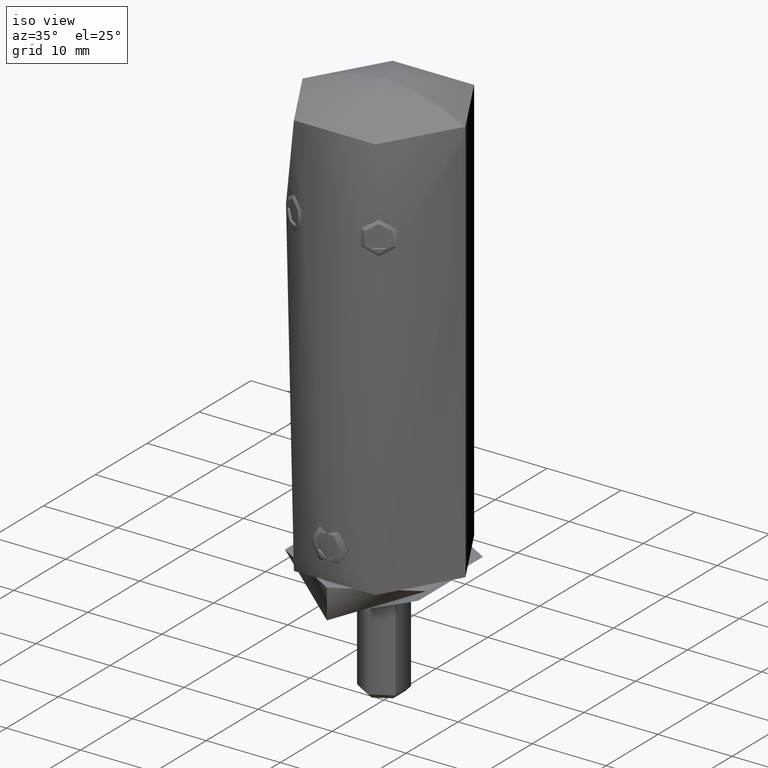
[diagram: clean part render]
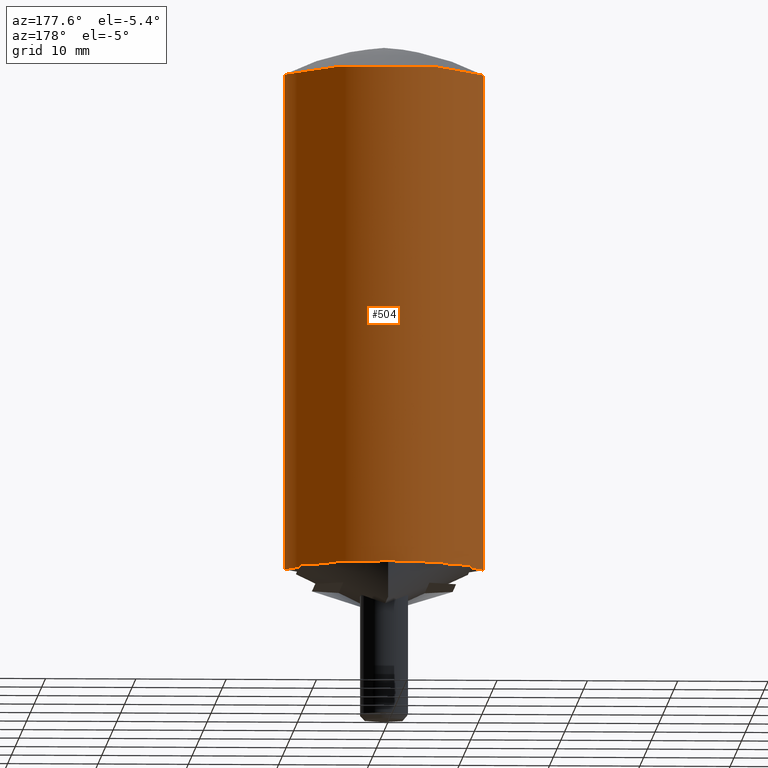
[diagram: tour spotlight — one face highlighted and labeled with its STEP entity id]
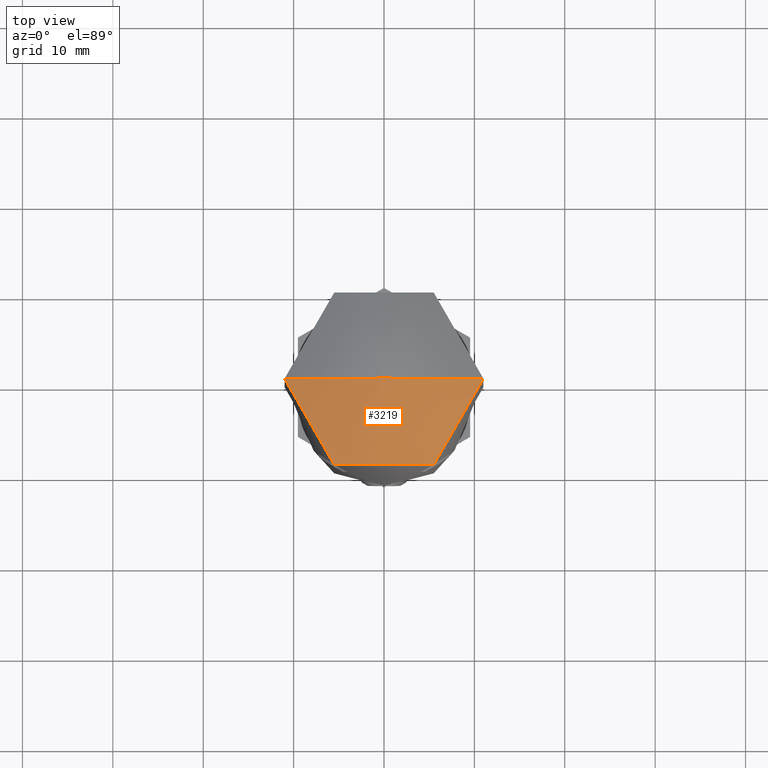
[diagram: tour spotlight — one face highlighted and labeled with its STEP entity id]
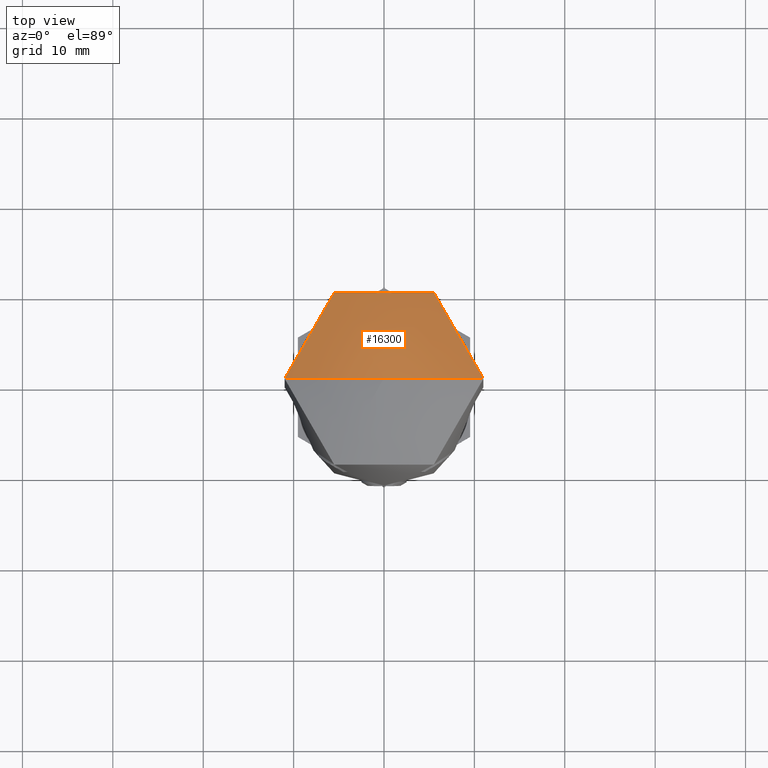
[diagram: tour spotlight — one face highlighted and labeled with its STEP entity id]
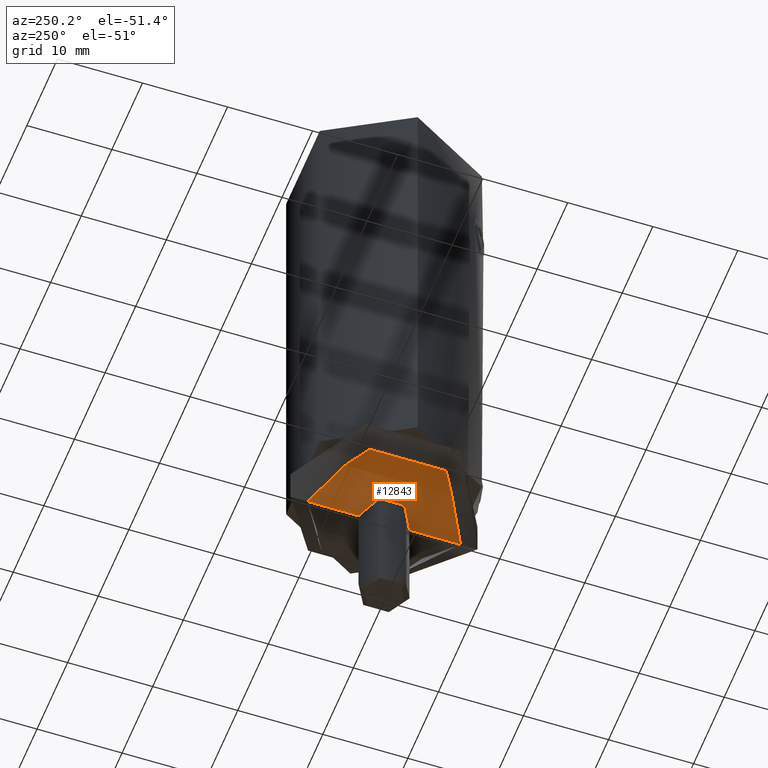
[diagram: tour spotlight — one face highlighted and labeled with its STEP entity id]
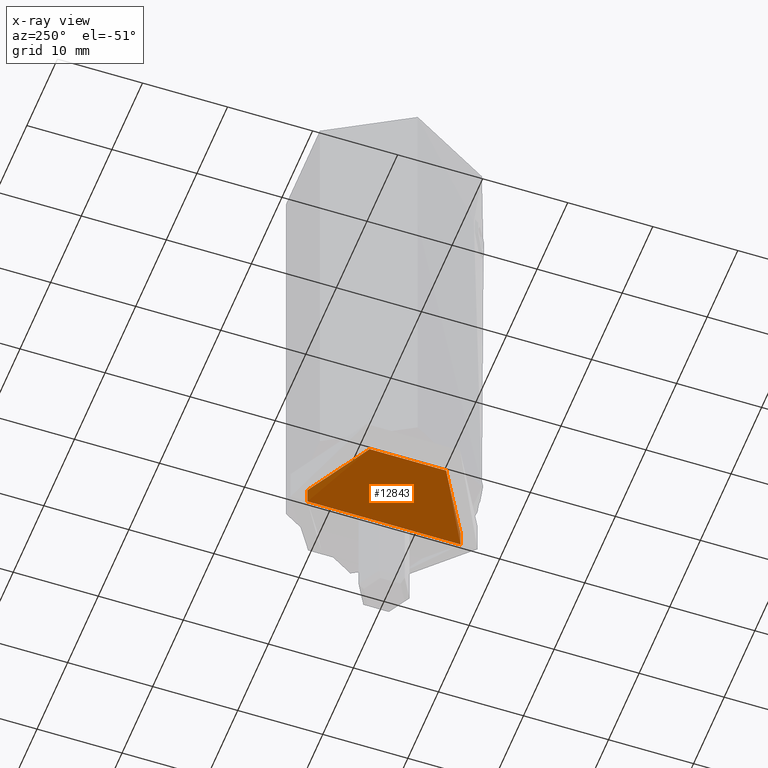
[diagram: x-ray of the same camera — body ghosted, this tour face saturated]
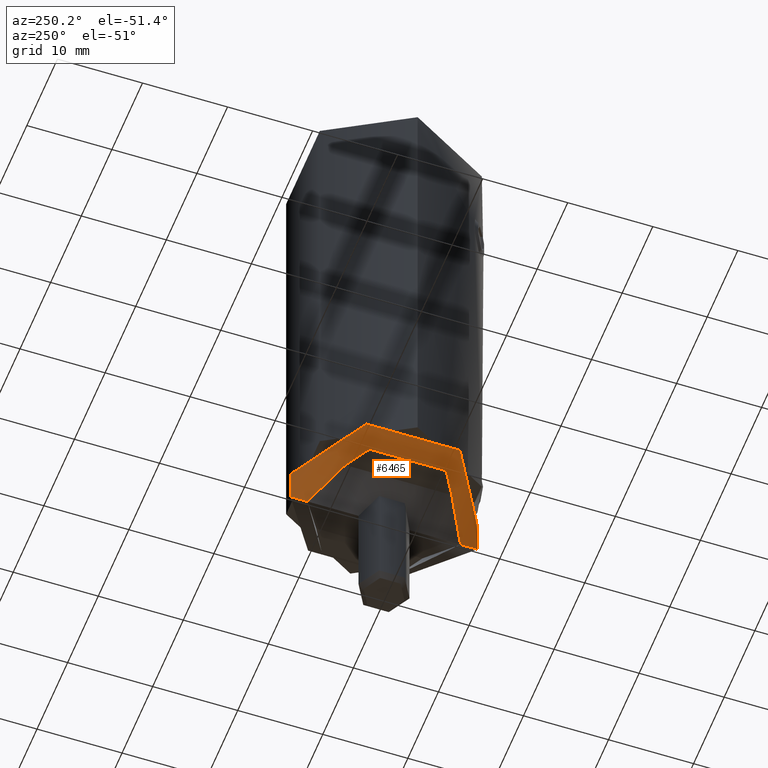
[diagram: tour spotlight — one face highlighted and labeled with its STEP entity id]
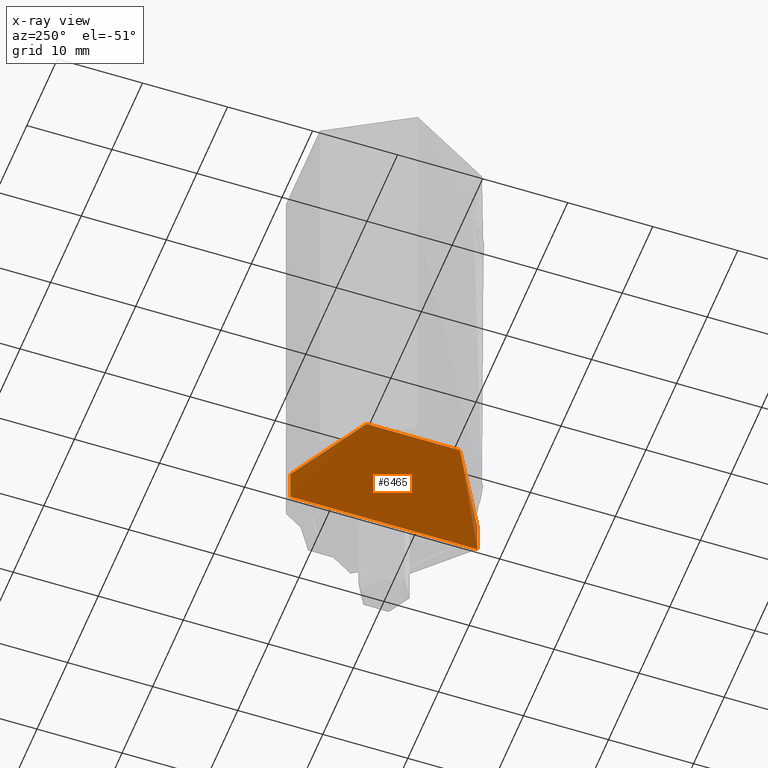
[diagram: x-ray of the same camera — body ghosted, this tour face saturated]
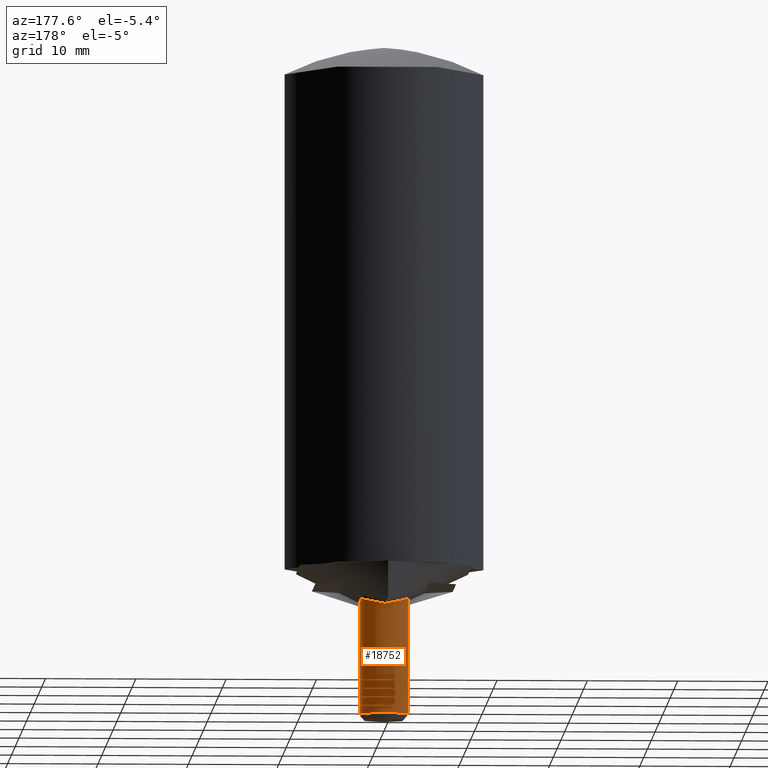
[diagram: tour spotlight — one face highlighted and labeled with its STEP entity id]
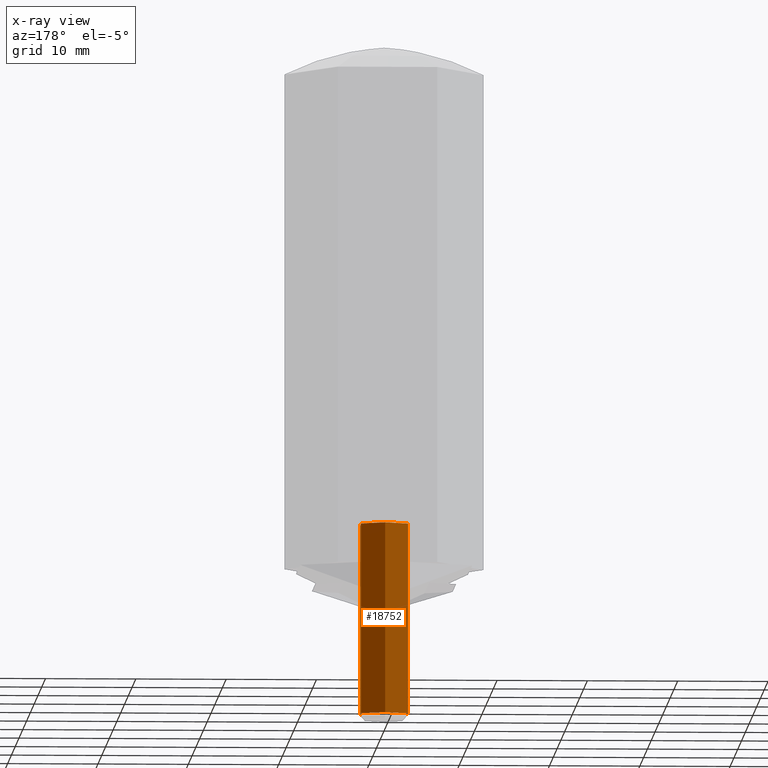
[diagram: x-ray of the same camera — body ghosted, this tour face saturated]
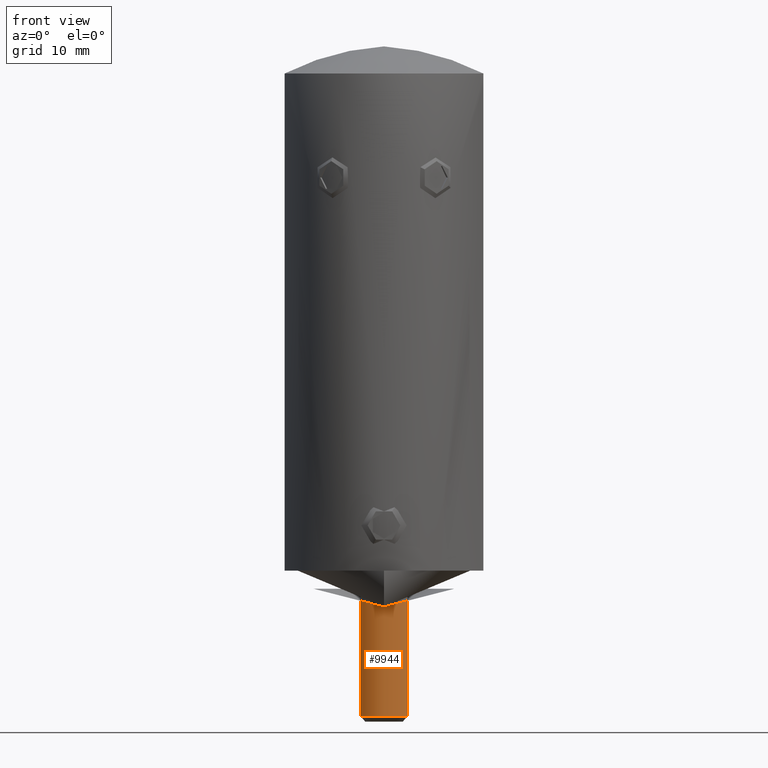
[diagram: tour spotlight — one face highlighted and labeled with its STEP entity id]
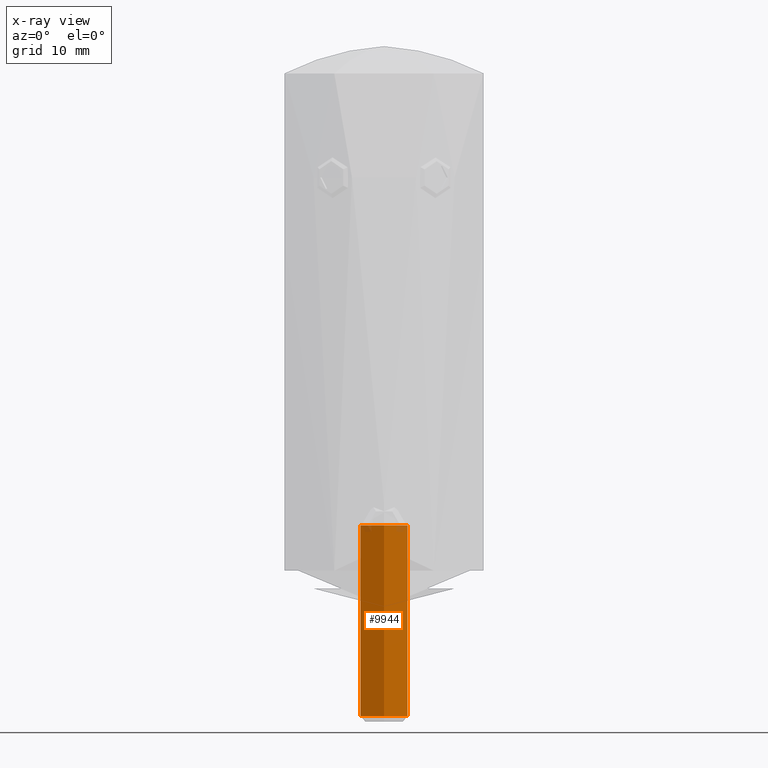
[diagram: x-ray of the same camera — body ghosted, this tour face saturated]
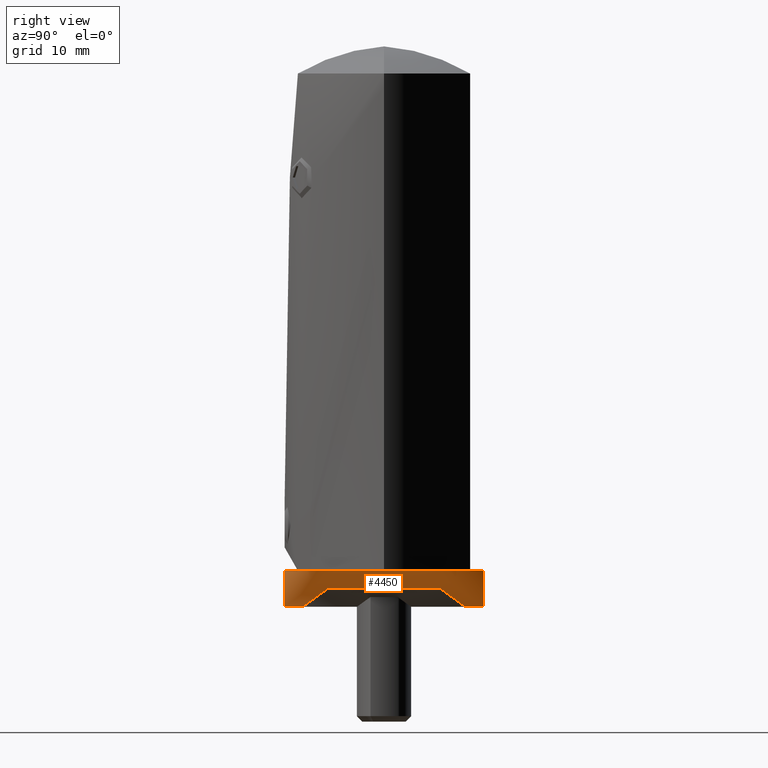
[diagram: tour spotlight — one face highlighted and labeled with its STEP entity id]
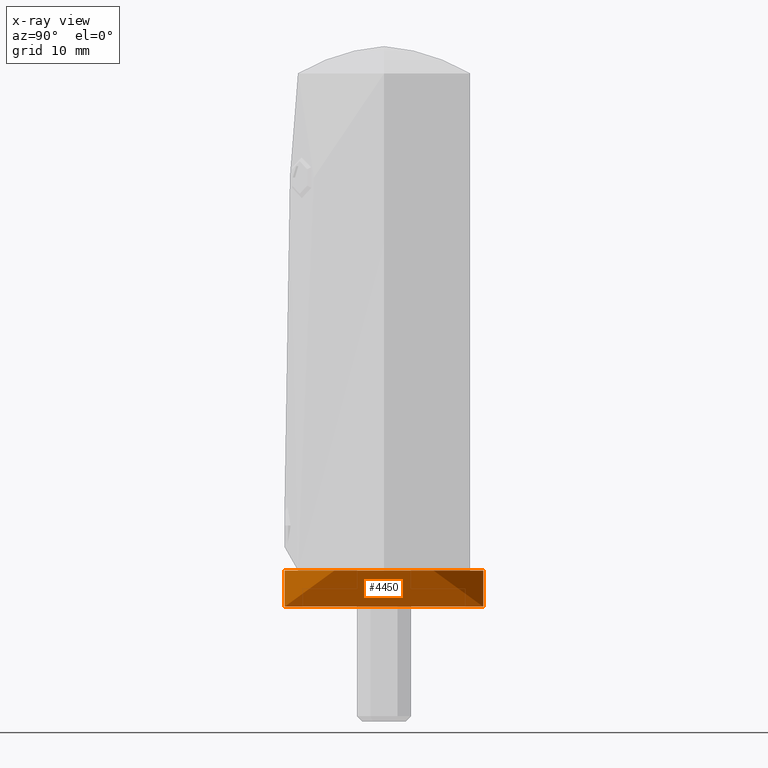
[diagram: x-ray of the same camera — body ghosted, this tour face saturated]
A machine part: a face-by-face anatomy tour. The part has 380 B-rep faces; the first image is the clean iso view, then the 8 largest visible faces are spotlighted one at a time (largest first), each with its STEP entity span.

Face 1 — auxiliary view, entity #504. In plain terms, the highlighted cylindrical surface (partial cylindrical patch) has radius 11 mm, axis along (0, 0, 1).
Definition (entity closure, byte-faithful):
#43 = CARTESIAN_POINT ( 'NONE',  ( -10.99999999999999645, 3.179853121175712002E-15, 53.39940828047591737 ) ) ;
#176 = CARTESIAN_POINT ( 'NONE',  ( 10.73393519092948623, 2.416305934057779492, 36.57782496849689835 ) ) ;
#396 = CARTESIAN_POINT ( 'NONE',  ( 10.08153054388151482, 4.417296773384424391, 37.86598695126414071 ) ) ;
#432 = EDGE_CURVE ( 'NONE', #16220, #20902, #13731, .T. ) ;
#504 = ADVANCED_FACE ( 'NONE', ( #13184 ), #15866, .T. ) ;
#521 = CARTESIAN_POINT ( 'NONE',  ( -10.95794404639704744, 0.9920796746228229823, 36.21159133631471860 ) ) ;
#584 = CARTESIAN_POINT ( 'NONE',  ( -10.29568834607457539, 3.877697571864475279, 37.40026834807495959 ) ) ;
#796 = EDGE_CURVE ( 'NONE', #6376, #11207, #4488, .T. ) ;
#1078 = CARTESIAN_POINT ( 'NONE',  ( -10.99999999999999645, 1.347111479062088010E-15, 57.99999999999999289 ) ) ;
#1832 = CARTESIAN_POINT ( 'NONE',  ( 9.397997172397694499, 5.717225328498643400, 40.14787537986045862 ) ) ;
#1881 = ORIENTED_EDGE ( 'NONE', *, *, #15271, .T. ) ;
#1897 = CARTESIAN_POINT ( 'NONE',  ( 10.86843869134571783, 1.713435614366017656, 36.35434967314588306 ) ) ;
#2057 = CARTESIAN_POINT ( 'NONE',  ( 9.180215329875197838, 6.060640059761968068, 41.83358403848892237 ) ) ;
#2103 = CARTESIAN_POINT ( 'NONE',  ( -10.73861026526337525, 2.425564938465545772, 36.56563245372201010 ) ) ;
#2133 = CARTESIAN_POINT ( 'NONE',  ( 10.58631334673217594, 2.992962176338220814, 51.88059600512111302 ) ) ;
#2172 = CARTESIAN_POINT ( 'NONE',  ( -10.83582434760962343, 1.954247557910656630, 36.40668192888391275 ) ) ;
#2247 = CARTESIAN_POINT ( 'NONE',  ( -9.631519731208598500, 5.315944351683325131, 47.65779525466364674 ) ) ;
#2329 = CARTESIAN_POINT ( 'NONE',  ( -10.99999999999999645, 1.353269175272069596E-15, 36.14600281952412786 ) ) ;
#2361 = CARTESIAN_POINT ( 'NONE',  ( -10.99999999999999822, 1.347111479062088405E-15, 0.000000000000000000 ) ) ;
#2420 = CARTESIAN_POINT ( 'NONE',  ( 10.99999999999999289, 0.2476221471021937404, 53.39940828047588184 ) ) ;
#2542 = CARTESIAN_POINT ( 'NONE',  ( -10.99999999999999289, 0.2519652550928409562, 53.39940828047592447 ) ) ;
#2611 = CARTESIAN_POINT ( 'NONE',  ( -9.996026330001594573, 4.597802995900678980, 49.45638380760349406 ) ) ;
#2805 = DIRECTION ( 'NONE',  ( -0.000000000000000000, -0.000000000000000000, 1.000000000000000000 ) ) ;
#2808 = DIRECTION ( 'NONE',  ( 1.000000000000000000, 0.000000000000000000, 0.000000000000000000 ) ) ;
#3242 = EDGE_CURVE ( 'NONE', #11207, #13003, #3795, .T. ) ;
#3717 = CARTESIAN_POINT ( 'NONE',  ( 10.29566045163969790, 3.877733627698559893, 37.40035271687323615 ) ) ;
#3795 = LINE ( 'NONE', #18200, #14477 ) ;
#3936 = CARTESIAN_POINT ( 'NONE',  ( -10.99999999999999645, 1.353269175272069596E-15, 36.14600281952412786 ) ) ;
#4019 = CARTESIAN_POINT ( 'NONE',  ( 10.87572997435835376, 1.664298062090882935, 52.95428903609269611 ) ) ;
#4056 = CARTESIAN_POINT ( 'NONE',  ( -9.494849601237003611, 5.554889612239375829, 39.69029067692063961 ) ) ;
#4183 = ORIENTED_EDGE ( 'NONE', *, *, #14484, .T. ) ;
#4212 = CARTESIAN_POINT ( 'NONE',  ( -10.29106834762204592, 3.896808626440960488, 50.71962474638309004 ) ) ;
#4239 = CARTESIAN_POINT ( 'NONE',  ( 10.84073496705685358, 1.876116880764273853, 52.82748759401037830 ) ) ;
#4335 = CARTESIAN_POINT ( 'NONE',  ( 10.99999999999999645, -2.446736237841549440E-16, 36.14600281952412786 ) ) ;
#4347 = CARTESIAN_POINT ( 'NONE',  ( -9.900462438095127382, 4.798056201855558811, 49.01826621475436241 ) ) ;
#4396 = ORIENTED_EDGE ( 'NONE', *, *, #3242, .F. ) ;
#4446 = LINE ( 'NONE', #1078, #22174 ) ;
#4488 = B_SPLINE_CURVE_WITH_KNOTS ( 'NONE', 3,
 ( #18992, #17233, #5308, #1897, #21033, #176, #19063, #13934, #10662, #20890, #3717, #396, #12310, #10506, #15727, #1832, #12378, #13869, #8797, #2057, #19294, #10587, #15648, #5603, #6995, #14015, #8727, #17464, #5529, #20735, #7221, #19220, #9031, #2133, #7293, #10732, #21254, #4239, #4019, #12674, #21111, #19367, #2420, #14388 ),
 .UNSPECIFIED., .F., .F.,
 ( 4, 2, 2, 2, 2, 2, 2, 2, 2, 2, 2, 2, 2, 2, 2, 2, 2, 2, 2, 2, 2, 4 ),
 ( 2.378719666313135134E-19, 0.001483315845811688074, 0.002224973768717530484, 0.002966631691623372244, 0.003708289614529214004, 0.004449947537435055764, 0.005933263383246751427, 0.007416579229058447090, 0.008158237151964294054, 0.008899895074870142753, 0.01038321092068184015, 0.01186652676649353408, 0.01334984261230522974, 0.01483315845811692540, 0.01779979014974029938, 0.01928310599555199678, 0.02002476391845784548, 0.02076642184136369418, 0.02150807976426954288, 0.02224973768717539158, 0.02299139561008123681, 0.02373305353298708550 ),
 .UNSPECIFIED. ) ;
#4775 = DIRECTION ( 'NONE',  ( -0.000000000000000000, -0.000000000000000000, 1.000000000000000000 ) ) ;
#5026 = CARTESIAN_POINT ( 'NONE',  ( 0.000000000000000000, 0.000000000000000000, 54.99999999999999289 ) ) ;
#5308 = CARTESIAN_POINT ( 'NONE',  ( 10.96587584406541538, 0.9923969674564584453, 36.19802835478423475 ) ) ;
#5496 = CARTESIAN_POINT ( 'NONE',  ( -9.156399203532409103, 6.095947699353323479, 43.32463628443333192 ) ) ;
#5529 = CARTESIAN_POINT ( 'NONE',  ( 9.897646929197605914, 4.824942360906618433, 49.02787806873249821 ) ) ;
#5603 = CARTESIAN_POINT ( 'NONE',  ( 9.235064815189414134, 5.976387414057343861, 44.79618393684415167 ) ) ;
#5645 = CARTESIAN_POINT ( 'NONE',  ( -10.56379577902986355, 3.075141893300886498, 36.87813969071028453 ) ) ;
#5714 = CARTESIAN_POINT ( 'NONE',  ( -10.93313739207502877, 1.234929135000510936, 36.25054759848256936 ) ) ;
#5788 = CARTESIAN_POINT ( 'NONE',  ( -9.156710212992038578, 6.095464100352848469, 42.32911800234613509 ) ) ;
#6072 = EDGE_LOOP ( 'NONE', ( #10621, #12233, #1881, #4183, #6665, #4396, #12575, #9334 ) ) ;
#6076 = CARTESIAN_POINT ( 'NONE',  ( -10.72101701489970615, 2.468618027424988259, 52.38748206870777580 ) ) ;
#6222 = EDGE_CURVE ( 'NONE', #16220, #6376, #15059, .T. ) ;
#6376 = VERTEX_POINT ( 'NONE', #4335 ) ;
#6665 = ORIENTED_EDGE ( 'NONE', *, *, #17448, .F. ) ;
#6737 = B_SPLINE_CURVE_WITH_KNOTS ( 'NONE', 3,
 ( #2329, #19493, #21003, #521, #5714, #2172, #2103, #5645, #10858, #17596, #584, #9069, #17510, #7488, #7265, #12578, #4056, #12281, #13981, #19267, #21082, #15996, #5788, #15702, #5496, #12507, #10774, #17432, #8912, #2247, #14208, #4347, #2611, #9359, #4212, #12644, #21298, #16218, #11000, #6076, #21385, #11150, #14636, #16283, #16136, #11067, #2542, #18027 ),
 .UNSPECIFIED., .F., .F.,
 ( 4, 2, 2, 2, 2, 2, 2, 2, 2, 2, 2, 2, 2, 2, 2, 2, 2, 2, 2, 2, 2, 2, 2, 4 ),
 ( 0.02383190917546752080, 0.02457588803516112808, 0.02531986689485473535, 0.02680782461424194990, 0.02755180347393555371, 0.02829578233362915404, 0.02978374005301634431, 0.03052771891270993423, 0.03127169777240352416, 0.03201567663209711062, 0.03275965549179069708, 0.03424761321117784918, 0.03499159207087142870, 0.03573557093056500822, 0.03871148636933938181, 0.04019944408872656860, 0.04168740180811375540, 0.04317535952750094219, 0.04391933838719454253, 0.04466331724688814286, 0.04540729610658174320, 0.04615127496627534354, 0.04689525382596895081, 0.04763923268566255115 ),
 .UNSPECIFIED. ) ;
#6995 = CARTESIAN_POINT ( 'NONE',  ( 9.283263599273576361, 5.902011725479057169, 45.28033809655084241 ) ) ;
#7221 = CARTESIAN_POINT ( 'NONE',  ( 10.29294014991731387, 3.891896294933175682, 50.72727436623610942 ) ) ;
#7265 = CARTESIAN_POINT ( 'NONE',  ( -9.667481184334763000, 5.249248039840223257, 39.03458745601034963 ) ) ;
#7293 = CARTESIAN_POINT ( 'NONE',  ( 10.63323463236588040, 2.822852607429330973, 52.05854110297575232 ) ) ;
#7488 = CARTESIAN_POINT ( 'NONE',  ( -9.732232187159732817, 5.128920919710662218, 38.82356213026510261 ) ) ;
#7524 = VERTEX_POINT ( 'NONE', #19038 ) ;
#8043 = DIRECTION ( 'NONE',  ( 1.000000000000000000, 0.000000000000000000, 0.000000000000000000 ) ) ;
#8463 = CARTESIAN_POINT ( 'NONE',  ( 10.99999999999999645, -1.832167948787974703E-20, 53.39940828047591737 ) ) ;
#8727 = CARTESIAN_POINT ( 'NONE',  ( 9.473599840962538821, 5.592520689685470003, 46.71881535906704386 ) ) ;
#8797 = CARTESIAN_POINT ( 'NONE',  ( 9.251907777510682607, 5.950137001418886129, 41.10480942168888419 ) ) ;
#8912 = CARTESIAN_POINT ( 'NONE',  ( -9.394268010509946976, 5.731446176849932073, 46.24700510606407988 ) ) ;
#9018 = AXIS2_PLACEMENT_3D ( 'NONE', #21778, #4775, #2808 ) ;
#9031 = CARTESIAN_POINT ( 'NONE',  ( 10.49064334275274035, 3.312741329978625693, 51.51188371964882151 ) ) ;
#9069 = CARTESIAN_POINT ( 'NONE',  ( -10.08068197055299464, 4.419366348462885341, 37.86787976243945053 ) ) ;
#9334 = ORIENTED_EDGE ( 'NONE', *, *, #6222, .F. ) ;
#9359 = CARTESIAN_POINT ( 'NONE',  ( -10.19129927505126787, 4.147017466268722252, 50.30699004470174174 ) ) ;
#10087 = DIRECTION ( 'NONE',  ( 1.000000000000000000, 0.000000000000000000, 0.000000000000000000 ) ) ;
#10506 = CARTESIAN_POINT ( 'NONE',  ( 9.663857765110273945, 5.263026034808695464, 39.02598245889342365 ) ) ;
#10529 = VECTOR ( 'NONE', #13675, 1000.000000000000000 ) ;
#10587 = CARTESIAN_POINT ( 'NONE',  ( 9.151198040853889992, 6.103736506717108767, 43.32461157251787398 ) ) ;
#10621 = ORIENTED_EDGE ( 'NONE', *, *, #432, .T. ) ;
#10662 = CARTESIAN_POINT ( 'NONE',  ( 10.50108648005597090, 3.282094437489230909, 36.99397323304767582 ) ) ;
#10732 = CARTESIAN_POINT ( 'NONE',  ( 10.72208490730656472, 2.463954307759058437, 52.39144499421087886 ) ) ;
#10774 = CARTESIAN_POINT ( 'NONE',  ( -9.185728301568172327, 6.051719503376332021, 44.06600305643030424 ) ) ;
#10858 = CARTESIAN_POINT ( 'NONE',  ( -10.50059767142498757, 3.283602282751339363, 36.99491037398542659 ) ) ;
#10979 = VERTEX_POINT ( 'NONE', #3936 ) ;
#11000 = CARTESIAN_POINT ( 'NONE',  ( -10.63186448416784380, 2.828027296435994487, 52.05336812640701538 ) ) ;
#11067 = CARTESIAN_POINT ( 'NONE',  ( -10.99132887674610437, 0.4995888412661479427, 53.36867533389132490 ) ) ;
#11150 = CARTESIAN_POINT ( 'NONE',  ( -10.84081443867489192, 1.875753506808877757, 52.82778105737060770 ) ) ;
#11202 = VERTEX_POINT ( 'NONE', #43 ) ;
#11207 = VERTEX_POINT ( 'NONE', #8463 ) ;
#11358 = CARTESIAN_POINT ( 'NONE',  ( 10.99999999999999289, 0.000000000000000000, 54.99999999999999289 ) ) ;
#11854 = EDGE_CURVE ( 'NONE', #20902, #10979, #12869, .T. ) ;
#12233 = ORIENTED_EDGE ( 'NONE', *, *, #11854, .T. ) ;
#12281 = CARTESIAN_POINT ( 'NONE',  ( -9.397807185784362360, 5.717533353911914418, 40.14891663085151663 ) ) ;
#12310 = CARTESIAN_POINT ( 'NONE',  ( 9.935765379171217049, 4.729709957007814047, 38.22104921943017786 ) ) ;
#12378 = CARTESIAN_POINT ( 'NONE',  ( 9.354794618527439098, 5.787272587873968810, 40.38567754118802355 ) ) ;
#12396 = CIRCLE ( 'NONE', #12948, 10.99999999999999289 ) ;
#12507 = CARTESIAN_POINT ( 'NONE',  ( -9.172980409928875645, 6.070968219877381777, 43.81992371072485071 ) ) ;
#12575 = ORIENTED_EDGE ( 'NONE', *, *, #796, .F. ) ;
#12578 = CARTESIAN_POINT ( 'NONE',  ( -9.549032377428092744, 5.461755952810695369, 39.46726535746742570 ) ) ;
#12644 = CARTESIAN_POINT ( 'NONE',  ( -10.43979944061767995, 3.468917546052643353, 51.31291825205306623 ) ) ;
#12674 = CARTESIAN_POINT ( 'NONE',  ( 10.93506435769342566, 1.214807806913858812, 53.16799819195803423 ) ) ;
#12869 = LINE ( 'NONE', #20162, #13407 ) ;
#12948 = AXIS2_PLACEMENT_3D ( 'NONE', #5026, #15069, #10087 ) ;
#13003 = VERTEX_POINT ( 'NONE', #11358 ) ;
#13184 = FACE_OUTER_BOUND ( 'NONE', #6072, .T. ) ;
#13276 = DIRECTION ( 'NONE',  ( -0.000000000000000000, -0.000000000000000000, 1.000000000000000000 ) ) ;
#13407 = VECTOR ( 'NONE', #16580, 1000.000000000000000 ) ;
#13675 = DIRECTION ( 'NONE',  ( -0.000000000000000000, -0.000000000000000000, 1.000000000000000000 ) ) ;
#13731 = CIRCLE ( 'NONE', #9018, 11.00000000000000000 ) ;
#13869 = CARTESIAN_POINT ( 'NONE',  ( 9.281883585321498487, 5.903502644170385061, 40.86370977007752003 ) ) ;
#13934 = CARTESIAN_POINT ( 'NONE',  ( 10.56435491736843879, 3.073213813164757280, 36.87711830749055508 ) ) ;
#13981 = CARTESIAN_POINT ( 'NONE',  ( -9.354779368371733739, 5.787300104866424988, 40.38565921043971940 ) ) ;
#14015 = CARTESIAN_POINT ( 'NONE',  ( 9.402351056604715041, 5.710387033262664502, 46.24071508231386218 ) ) ;
#14208 = CARTESIAN_POINT ( 'NONE',  ( -9.718334420191716561, 5.156983217115803875, 48.11962613464158522 ) ) ;
#14388 = CARTESIAN_POINT ( 'NONE',  ( 10.99999999999999645, -1.832167948787974703E-20, 53.39940828047591737 ) ) ;
#14461 = CARTESIAN_POINT ( 'NONE',  ( 11.00000000000000000, 0.000000000000000000, 0.000000000000000000 ) ) ;
#14477 = VECTOR ( 'NONE', #21680, 1000.000000000000000 ) ;
#14484 = EDGE_CURVE ( 'NONE', #11202, #7524, #4446, .T. ) ;
#14636 = CARTESIAN_POINT ( 'NONE',  ( -10.87546595887654632, 1.665662659555589897, 52.95332915884883818 ) ) ;
#15059 = LINE ( 'NONE', #20547, #10529 ) ;
#15069 = DIRECTION ( 'NONE',  ( -0.000000000000000000, -0.000000000000000000, 1.000000000000000000 ) ) ;
#15271 = EDGE_CURVE ( 'NONE', #10979, #11202, #6737, .T. ) ;
#15648 = CARTESIAN_POINT ( 'NONE',  ( 9.169056902621070648, 6.077172383613067552, 43.81856789785169326 ) ) ;
#15702 = CARTESIAN_POINT ( 'NONE',  ( -9.152591237187895246, 6.101645661278764621, 43.07453183032575339 ) ) ;
#15727 = CARTESIAN_POINT ( 'NONE',  ( 9.543942195733455591, 5.472589204515951877, 39.45856544710304092 ) ) ;
#15866 = CYLINDRICAL_SURFACE ( 'NONE', #20823, 10.99999999999999645 ) ;
#15996 = CARTESIAN_POINT ( 'NONE',  ( -9.179988342886426622, 6.060982579414075921, 41.83686105521512388 ) ) ;
#16136 = CARTESIAN_POINT ( 'NONE',  ( -10.95859947120640854, 0.9838684448568294494, 53.25204612324574072 ) ) ;
#16218 = CARTESIAN_POINT ( 'NONE',  ( -10.58522211789765954, 2.996832365932805331, 51.87643854240059227 ) ) ;
#16220 = VERTEX_POINT ( 'NONE', #14461 ) ;
#16283 = CARTESIAN_POINT ( 'NONE',  ( -10.93426773699784427, 1.221466730520446964, 53.16513773528284048 ) ) ;
#16580 = DIRECTION ( 'NONE',  ( -0.000000000000000000, -0.000000000000000000, 1.000000000000000000 ) ) ;
#17233 = CARTESIAN_POINT ( 'NONE',  ( 10.99999999999999645, 0.5014577260992733043, 36.14600281952413496 ) ) ;
#17432 = CARTESIAN_POINT ( 'NONE',  ( -9.268515488525329360, 5.925304606801424789, 45.28950252704785129 ) ) ;
#17448 = EDGE_CURVE ( 'NONE', #13003, #7524, #12396, .T. ) ;
#17464 = CARTESIAN_POINT ( 'NONE',  ( 9.710582549426430177, 5.177462022628182226, 48.12778777531249830 ) ) ;
#17510 = CARTESIAN_POINT ( 'NONE',  ( -9.935134642669448013, 4.730939886931997407, 38.22293688732765560 ) ) ;
#17596 = CARTESIAN_POINT ( 'NONE',  ( -10.36683068439162625, 3.684211851886620259, 37.25533283784128002 ) ) ;
#18027 = CARTESIAN_POINT ( 'NONE',  ( -10.99999999999999645, 3.179853121175712002E-15, 53.39940828047591737 ) ) ;
#18200 = CARTESIAN_POINT ( 'NONE',  ( 10.99999999999999645, 0.000000000000000000, 57.99999999999999289 ) ) ;
#18293 = CARTESIAN_POINT ( 'NONE',  ( 0.000000000000000000, 0.000000000000000000, 57.99999999999999289 ) ) ;
#18992 = CARTESIAN_POINT ( 'NONE',  ( 10.99999999999999645, -2.446736237841549440E-16, 36.14600281952412786 ) ) ;
#19038 = CARTESIAN_POINT ( 'NONE',  ( -10.99999999999999289, 1.347111479062087813E-15, 54.99999999999999289 ) ) ;
#19063 = CARTESIAN_POINT ( 'NONE',  ( 10.68077503142536244, 2.640318671985236954, 36.66904367614382920 ) ) ;
#19220 = CARTESIAN_POINT ( 'NONE',  ( 10.44166798045407596, 3.463298747008931144, 51.32027784202276166 ) ) ;
#19267 = CARTESIAN_POINT ( 'NONE',  ( -9.281608931760761294, 5.903937260215352367, 40.86562928851518706 ) ) ;
#19294 = CARTESIAN_POINT ( 'NONE',  ( 9.156734942247304332, 6.095426984534098480, 42.32669234761433330 ) ) ;
#19367 = CARTESIAN_POINT ( 'NONE',  ( 10.99131598310265545, 0.4995309746274557705, 53.36862894122175049 ) ) ;
#19493 = CARTESIAN_POINT ( 'NONE',  ( -10.99999999999999645, 0.2495468869992601979, 36.14600281952413496 ) ) ;
#20162 = CARTESIAN_POINT ( 'NONE',  ( -10.99999999999999645, 1.347111479062088010E-15, 57.99999999999999289 ) ) ;
#20547 = CARTESIAN_POINT ( 'NONE',  ( 10.99999999999999645, 0.000000000000000000, 57.99999999999999289 ) ) ;
#20735 = CARTESIAN_POINT ( 'NONE',  ( 10.19183751265291882, 4.145759157978441856, 50.30931780347248861 ) ) ;
#20823 = AXIS2_PLACEMENT_3D ( 'NONE', #18293, #13276, #8043 ) ;
#20890 = CARTESIAN_POINT ( 'NONE',  ( 10.36679842674548091, 3.684352254798576087, 37.25538119780029689 ) ) ;
#20902 = VERTEX_POINT ( 'NONE', #2361 ) ;
#21003 = CARTESIAN_POINT ( 'NONE',  ( -10.99138456622760529, 0.5002250714047322688, 36.15930379952266804 ) ) ;
#21033 = CARTESIAN_POINT ( 'NONE',  ( 10.82784448843476888, 1.952865275514410248, 36.42034082848900312 ) ) ;
#21082 = CARTESIAN_POINT ( 'NONE',  ( -9.251613099835374499, 5.950594844368697345, 41.10732422085751381 ) ) ;
#21111 = CARTESIAN_POINT ( 'NONE',  ( 10.95871493289263476, 0.9824078860718522543, 53.25245800938260032 ) ) ;
#21254 = CARTESIAN_POINT ( 'NONE',  ( 10.76398857083809801, 2.275499774362681471, 52.54633830998512423 ) ) ;
#21298 = CARTESIAN_POINT ( 'NONE',  ( -10.48929323941067793, 3.317025603215278284, 51.50663104538144665 ) ) ;
#21385 = CARTESIAN_POINT ( 'NONE',  ( -10.76371629460333779, 2.276866364409296128, 52.54533852905854019 ) ) ;
#21680 = DIRECTION ( 'NONE',  ( -0.000000000000000000, -0.000000000000000000, 1.000000000000000000 ) ) ;
#21778 = CARTESIAN_POINT ( 'NONE',  ( 0.000000000000000000, 0.000000000000000000, 0.000000000000000000 ) ) ;
#22174 = VECTOR ( 'NONE', #2805, 1000.000000000000000 ) ;

Face 2 — top view, entity #3219. In plain terms, the highlighted toroidal blend (fillet) surface has major radius 1.713 mm and minor (blend) radius 28 mm.
Definition (entity closure, byte-faithful):
#69 = CIRCLE ( 'NONE', #14292, 10.99999999999999289 ) ;
#313 = EDGE_CURVE ( 'NONE', #13003, #15775, #2751, .T. ) ;
#404 = EDGE_CURVE ( 'NONE', #7524, #13003, #69, .T. ) ;
#1903 = FACE_OUTER_BOUND ( 'NONE', #15518, .T. ) ;
#2751 = CIRCLE ( 'NONE', #7845, 28.00000000000000000 ) ;
#2866 = ORIENTED_EDGE ( 'NONE', *, *, #18177, .F. ) ;
#3219 = ADVANCED_FACE ( 'NONE', ( #1903 ), #15004, .T. ) ;
#4369 = DIRECTION ( 'NONE',  ( 1.000000000000000000, 0.000000000000000000, 0.000000000000000000 ) ) ;
#4877 = DIRECTION ( 'NONE',  ( -1.000000000000000000, 1.224646799147353207E-16, 0.000000000000000000 ) ) ;
#5734 = CARTESIAN_POINT ( 'NONE',  ( 0.000000000000000000, 0.000000000000000000, 30.05244667416139492 ) ) ;
#6731 = DIRECTION ( 'NONE',  ( 1.224646799147353207E-16, 1.000000000000000000, 0.000000000000000000 ) ) ;
#6790 = CARTESIAN_POINT ( 'NONE',  ( 0.000000000000000000, 0.000000000000000000, 57.99999999999999289 ) ) ;
#7524 = VERTEX_POINT ( 'NONE', #19038 ) ;
#7845 = AXIS2_PLACEMENT_3D ( 'NONE', #21570, #12778, #21362 ) ;
#8201 = CARTESIAN_POINT ( 'NONE',  ( 0.000000000000000000, 0.000000000000000000, 54.99999999999999289 ) ) ;
#9663 = DIRECTION ( 'NONE',  ( -0.000000000000000000, -0.000000000000000000, 1.000000000000000000 ) ) ;
#10158 = ORIENTED_EDGE ( 'NONE', *, *, #404, .T. ) ;
#11358 = CARTESIAN_POINT ( 'NONE',  ( 10.99999999999999289, 0.000000000000000000, 54.99999999999999289 ) ) ;
#12666 = AXIS2_PLACEMENT_3D ( 'NONE', #20321, #6731, #4877 ) ;
#12778 = DIRECTION ( 'NONE',  ( 0.000000000000000000, -1.000000000000000000, 0.000000000000000000 ) ) ;
#13003 = VERTEX_POINT ( 'NONE', #11358 ) ;
#13983 = ORIENTED_EDGE ( 'NONE', *, *, #313, .T. ) ;
#14292 = AXIS2_PLACEMENT_3D ( 'NONE', #8201, #18446, #20212 ) ;
#15004 = TOROIDAL_SURFACE ( 'NONE', #20389, -1.712969088865089695, 28.00000000000000000 ) ;
#15518 = EDGE_LOOP ( 'NONE', ( #2866, #10158, #13983 ) ) ;
#15775 = VERTEX_POINT ( 'NONE', #6790 ) ;
#17732 = CIRCLE ( 'NONE', #12666, 28.00000000000000000 ) ;
#18177 = EDGE_CURVE ( 'NONE', #7524, #15775, #17732, .T. ) ;
#18446 = DIRECTION ( 'NONE',  ( -0.000000000000000000, -0.000000000000000000, 1.000000000000000000 ) ) ;
#19038 = CARTESIAN_POINT ( 'NONE',  ( -10.99999999999999289, 1.347111479062087813E-15, 54.99999999999999289 ) ) ;
#20212 = DIRECTION ( 'NONE',  ( 1.000000000000000000, 0.000000000000000000, 0.000000000000000000 ) ) ;
#20321 = CARTESIAN_POINT ( 'NONE',  ( 1.712969088865089695, -2.097782111716990278E-16, 30.05244667416139492 ) ) ;
#20389 = AXIS2_PLACEMENT_3D ( 'NONE', #5734, #9663, #4369 ) ;
#21362 = DIRECTION ( 'NONE',  ( 0.000000000000000000, 0.000000000000000000, -1.000000000000000000 ) ) ;
#21570 = CARTESIAN_POINT ( 'NONE',  ( -1.712969088865089695, 0.000000000000000000, 30.05244667416139492 ) ) ;

Face 3 — top view, entity #16300. In plain terms, the highlighted toroidal blend (fillet) surface has major radius 1.713 mm and minor (blend) radius 28 mm.
Definition (entity closure, byte-faithful):
#313 = EDGE_CURVE ( 'NONE', #13003, #15775, #2751, .T. ) ;
#354 = FACE_OUTER_BOUND ( 'NONE', #1012, .T. ) ;
#905 = ORIENTED_EDGE ( 'NONE', *, *, #313, .F. ) ;
#1012 = EDGE_LOOP ( 'NONE', ( #10067, #4646, #905 ) ) ;
#2751 = CIRCLE ( 'NONE', #7845, 28.00000000000000000 ) ;
#4646 = ORIENTED_EDGE ( 'NONE', *, *, #18177, .T. ) ;
#4877 = DIRECTION ( 'NONE',  ( -1.000000000000000000, 1.224646799147353207E-16, 0.000000000000000000 ) ) ;
#5026 = CARTESIAN_POINT ( 'NONE',  ( 0.000000000000000000, 0.000000000000000000, 54.99999999999999289 ) ) ;
#6731 = DIRECTION ( 'NONE',  ( 1.224646799147353207E-16, 1.000000000000000000, 0.000000000000000000 ) ) ;
#6790 = CARTESIAN_POINT ( 'NONE',  ( 0.000000000000000000, 0.000000000000000000, 57.99999999999999289 ) ) ;
#7524 = VERTEX_POINT ( 'NONE', #19038 ) ;
#7845 = AXIS2_PLACEMENT_3D ( 'NONE', #21570, #12778, #21362 ) ;
#10067 = ORIENTED_EDGE ( 'NONE', *, *, #17448, .T. ) ;
#10087 = DIRECTION ( 'NONE',  ( 1.000000000000000000, 0.000000000000000000, 0.000000000000000000 ) ) ;
#11358 = CARTESIAN_POINT ( 'NONE',  ( 10.99999999999999289, 0.000000000000000000, 54.99999999999999289 ) ) ;
#12396 = CIRCLE ( 'NONE', #12948, 10.99999999999999289 ) ;
#12666 = AXIS2_PLACEMENT_3D ( 'NONE', #20321, #6731, #4877 ) ;
#12778 = DIRECTION ( 'NONE',  ( 0.000000000000000000, -1.000000000000000000, 0.000000000000000000 ) ) ;
#12948 = AXIS2_PLACEMENT_3D ( 'NONE', #5026, #15069, #10087 ) ;
#13003 = VERTEX_POINT ( 'NONE', #11358 ) ;
#13645 = DIRECTION ( 'NONE',  ( 1.000000000000000000, 0.000000000000000000, 0.000000000000000000 ) ) ;
#15045 = DIRECTION ( 'NONE',  ( -0.000000000000000000, -0.000000000000000000, 1.000000000000000000 ) ) ;
#15069 = DIRECTION ( 'NONE',  ( -0.000000000000000000, -0.000000000000000000, 1.000000000000000000 ) ) ;
#15775 = VERTEX_POINT ( 'NONE', #6790 ) ;
#16300 = ADVANCED_FACE ( 'NONE', ( #354 ), #19134, .T. ) ;
#17448 = EDGE_CURVE ( 'NONE', #13003, #7524, #12396, .T. ) ;
#17732 = CIRCLE ( 'NONE', #12666, 28.00000000000000000 ) ;
#18177 = EDGE_CURVE ( 'NONE', #7524, #15775, #17732, .T. ) ;
#18592 = CARTESIAN_POINT ( 'NONE',  ( 0.000000000000000000, 0.000000000000000000, 30.05244667416139492 ) ) ;
#19038 = CARTESIAN_POINT ( 'NONE',  ( -10.99999999999999289, 1.347111479062087813E-15, 54.99999999999999289 ) ) ;
#19134 = TOROIDAL_SURFACE ( 'NONE', #20016, -1.712969088865089695, 28.00000000000000000 ) ;
#20016 = AXIS2_PLACEMENT_3D ( 'NONE', #18592, #15045, #13645 ) ;
#20321 = CARTESIAN_POINT ( 'NONE',  ( 1.712969088865089695, -2.097782111716990278E-16, 30.05244667416139492 ) ) ;
#21362 = DIRECTION ( 'NONE',  ( 0.000000000000000000, 0.000000000000000000, -1.000000000000000000 ) ) ;
#21570 = CARTESIAN_POINT ( 'NONE',  ( -1.712969088865089695, 0.000000000000000000, 30.05244667416139492 ) ) ;

Face 4 — auxiliary view, entity #12843. An x-ray twin of the same camera follows (body ghosted, this face saturated) — the face is partly hidden behind the body. In plain terms, the highlighted cylindrical surface (partial cylindrical patch) has radius 9 mm, axis along (0, 0, -1).
Definition (entity closure, byte-faithful):
#1040 = ORIENTED_EDGE ( 'NONE', *, *, #15397, .F. ) ;
#1366 = CARTESIAN_POINT ( 'NONE',  ( -8.940731937358899373, 1.190075437836061178, -1.977100309098891229 ) ) ;
#1532 = CARTESIAN_POINT ( 'NONE',  ( -7.803510929205667246, 4.522188408825446260, -1.485353026589253167 ) ) ;
#2212 = DIRECTION ( 'NONE',  ( -0.000000000000000000, 1.224646799147353700E-16, -1.000000000000000000 ) ) ;
#2429 = EDGE_CURVE ( 'NONE', #4810, #6351, #4092, .T. ) ;
#2551 = DIRECTION ( 'NONE',  ( -0.000000000000000000, 1.224646799147353700E-16, -1.000000000000000000 ) ) ;
#2828 = EDGE_CURVE ( 'NONE', #4810, #22097, #10474, .T. ) ;
#3021 = CARTESIAN_POINT ( 'NONE',  ( -7.798571145882971400, -4.530130009987126449, -1.483440302711150904 ) ) ;
#3109 = CARTESIAN_POINT ( 'NONE',  ( -8.926111635704424785, -1.189302625270157288, -1.970709750180464015 ) ) ;
#3184 = CARTESIAN_POINT ( 'NONE',  ( -2.351102510118274758, 8.692581125495630445, -0.1288197862251532766 ) ) ;
#3508 = CARTESIAN_POINT ( 'NONE',  ( 1.102158473109589528E-15, -9.000000000000000000, 5.110839364564302017E-15 ) ) ;
#3801 = DIRECTION ( 'NONE',  ( 0.000000000000000000, 1.000000000000000000, 1.445602896647339163E-16 ) ) ;
#4064 = CARTESIAN_POINT ( 'NONE',  ( 0.000000000000000000, 9.000000000000000000, 1.999999999999999556 ) ) ;
#4092 = LINE ( 'NONE', #19256, #13957 ) ;
#4168 = AXIS2_PLACEMENT_3D ( 'NONE', #17555, #2212, #3801 ) ;
#4415 = EDGE_LOOP ( 'NONE', ( #16297, #19347, #1040, #4437 ) ) ;
#4437 = ORIENTED_EDGE ( 'NONE', *, *, #10537, .F. ) ;
#4771 = CARTESIAN_POINT ( 'NONE',  ( -7.149048956074048000, -5.498262348091527585, -1.238749106385893750 ) ) ;
#4810 = VERTEX_POINT ( 'NONE', #13705 ) ;
#4846 = CARTESIAN_POINT ( 'NONE',  ( -8.706750696824441249, -2.354395332776095806, -1.869998219929479566 ) ) ;
#4926 = CARTESIAN_POINT ( 'NONE',  ( -6.768251941356697721, 5.939311286811440382, -1.108484183741384355 ) ) ;
#5007 = CARTESIAN_POINT ( 'NONE',  ( -2.400543471972580931E-16, 9.000000000000000000, 0.000000000000000000 ) ) ;
#5011 = CARTESIAN_POINT ( 'NONE',  ( -3.736670627740366513, -8.192869673815865283, -0.3301080335937479071 ) ) ;
#5082 = CARTESIAN_POINT ( 'NONE',  ( -8.765216953880974771, 2.063786212828273570, -1.896759034376210185 ) ) ;
#6351 = VERTEX_POINT ( 'NONE', #3508 ) ;
#6776 = CARTESIAN_POINT ( 'NONE',  ( -6.163763077976560645, 6.564455524836763978, -0.9146813748701947411 ) ) ;
#7779 = CARTESIAN_POINT ( 'NONE',  ( -2.362258398571401852, -8.705150679785440104, -0.1237550131540286480 ) ) ;
#7919 = VERTEX_POINT ( 'NONE', #19789 ) ;
#8000 = B_SPLINE_CURVE_WITH_KNOTS ( 'NONE', 3,
 ( #5007, #8112, #16936, #18680, #3184, #10068, #9835, #14978, #15135, #20430, #11787, #8196, #6776, #20204, #4926, #22099, #10142, #1532, #22188, #13503, #11865, #21860, #5082, #1366, #13350, #17015, #16790, #3109, #20132, #4846, #11552, #13269, #3021, #4771, #16706, #22245, #13633, #9508, #9992, #8725, #5011, #10257, #7779, #12861, #14570, #10763 ),
 .UNSPECIFIED., .F., .F.,
 ( 4, 2, 2, 2, 2, 2, 2, 2, 2, 2, 2, 2, 2, 2, 2, 2, 2, 2, 2, 2, 2, 2, 4 ),
 ( 5.062253139685022446E-19, 0.001780017036675973947, 0.002670025555013960487, 0.003560034073351947461, 0.005340051110027923577, 0.006230059628365911852, 0.007120068146703899259, 0.008010076665041885799, 0.008900085183379875808, 0.01068010222005585062, 0.01157011073839384063, 0.01246011925673182891, 0.01424013629340780719, 0.01513014481174579720, 0.01602015333008378548, 0.01780017036675976549, 0.01958018740343573857, 0.02136020444011171512, 0.02314022147678769167, 0.02403022999512567995, 0.02492023851346366128, 0.02670025555013963783, 0.02848027258681560744 ),
 .UNSPECIFIED. ) ;
#8112 = CARTESIAN_POINT ( 'NONE',  ( -0.6023680047795310077, 9.000000000000003553, -4.517509052022924100E-18 ) ) ;
#8196 = CARTESIAN_POINT ( 'NONE',  ( -5.948845107420104306, 6.759918684724714133, -0.8504051195111994588 ) ) ;
#8725 = CARTESIAN_POINT ( 'NONE',  ( -4.001315330663514303, -8.066963386631149646, -0.3793526689448573075 ) ) ;
#8866 = DIRECTION ( 'NONE',  ( -0.000000000000000000, 1.224646799147353700E-16, -1.000000000000000000 ) ) ;
#9508 = CARTESIAN_POINT ( 'NONE',  ( -4.773436371815510171, -7.635452310474522442, -0.5428710946691381878 ) ) ;
#9835 = CARTESIAN_POINT ( 'NONE',  ( -3.201236851661948268, 8.416586300377323582, -0.2412779289930500337 ) ) ;
#9992 = CARTESIAN_POINT ( 'NONE',  ( -4.519225296665153380, -7.788647210821150857, -0.4855972237296143357 ) ) ;
#10068 = CARTESIAN_POINT ( 'NONE',  ( -2.920474601856164476, 8.518185119866814148, -0.2001631741012300791 ) ) ;
#10142 = CARTESIAN_POINT ( 'NONE',  ( -7.313069460956389989, 5.254070590124755746, -1.300514150201303787 ) ) ;
#10257 = CARTESIAN_POINT ( 'NONE',  ( -2.925613582454150929, -8.531357960814737851, -0.1956866942786530394 ) ) ;
#10474 = CIRCLE ( 'NONE', #4168, 9.000000000000000000 ) ;
#10537 = EDGE_CURVE ( 'NONE', #22097, #7919, #13706, .T. ) ;
#10763 = CARTESIAN_POINT ( 'NONE',  ( 1.102158473109589528E-15, -9.000000000000000000, 5.110839364564302017E-15 ) ) ;
#11552 = CARTESIAN_POINT ( 'NONE',  ( -8.533385061147304995, -2.921161065399778600, -1.791675246480357586 ) ) ;
#11787 = CARTESIAN_POINT ( 'NONE',  ( -5.498166174509198534, 7.131299142067263119, -0.7240399827120439502 ) ) ;
#11865 = CARTESIAN_POINT ( 'NONE',  ( -8.517504256587191236, 2.922345474988995218, -1.786057172129875026 ) ) ;
#12843 = ADVANCED_FACE ( 'NONE', ( #21075 ), #20542, .F. ) ;
#12861 = CARTESIAN_POINT ( 'NONE',  ( -1.185945749614563782, -8.941669071172404060, -0.02496988984095418682 ) ) ;
#13158 = CARTESIAN_POINT ( 'NONE',  ( 0.000000000000000000, 9.000000000000000000, 1.999999999999999556 ) ) ;
#13269 = CARTESIAN_POINT ( 'NONE',  ( -8.076187423238080143, -4.015848512649688118, -1.597017394166100335 ) ) ;
#13350 = CARTESIAN_POINT ( 'NONE',  ( -8.999598962355415566, 0.6012754681276679669, -2.005021002590616774 ) ) ;
#13503 = CARTESIAN_POINT ( 'NONE',  ( -8.417399978128180749, 3.198897901575216807, -1.742292184308377845 ) ) ;
#13633 = CARTESIAN_POINT ( 'NONE',  ( -5.503122217084856160, -7.145554771257088156, -0.7205878137888328538 ) ) ;
#13705 = CARTESIAN_POINT ( 'NONE',  ( 1.102182119232617714E-15, -9.000000000000000000, 1.999999999999997113 ) ) ;
#13706 = LINE ( 'NONE', #4064, #15020 ) ;
#13936 = CARTESIAN_POINT ( 'NONE',  ( 0.000000000000000000, -2.449293598294700991E-16, 1.999999999999998224 ) ) ;
#13957 = VECTOR ( 'NONE', #19842, 1000.000000000000000 ) ;
#14570 = CARTESIAN_POINT ( 'NONE',  ( -0.5933890720346690628, -9.000000000000005329, 3.932491629785966882E-15 ) ) ;
#14978 = CARTESIAN_POINT ( 'NONE',  ( -4.016827951074800396, 8.075423365992346447, -0.3767224930350305256 ) ) ;
#15020 = VECTOR ( 'NONE', #2551, 1000.000000000000000 ) ;
#15135 = CARTESIAN_POINT ( 'NONE',  ( -4.531352901498308050, 7.798104117224854193, -0.4838789241247283268 ) ) ;
#15397 = EDGE_CURVE ( 'NONE', #7919, #6351, #8000, .T. ) ;
#16297 = ORIENTED_EDGE ( 'NONE', *, *, #2828, .F. ) ;
#16706 = CARTESIAN_POINT ( 'NONE',  ( -6.773059061270842562, -5.955118620857087208, -1.106434257152069112 ) ) ;
#16790 = CARTESIAN_POINT ( 'NONE',  ( -8.985476887790625256, -0.5925493789659646016, -1.998378257453274687 ) ) ;
#16936 = CARTESIAN_POINT ( 'NONE',  ( -1.193336431064577319, 8.940146670528566375, -0.02560525405432603069 ) ) ;
#17015 = CARTESIAN_POINT ( 'NONE',  ( -9.000197485660867969, -0.2915881291376420381, -2.005301636450289138 ) ) ;
#17555 = CARTESIAN_POINT ( 'NONE',  ( 0.000000000000000000, -2.449293598294701484E-16, 1.999999999999998224 ) ) ;
#17975 = AXIS2_PLACEMENT_3D ( 'NONE', #13936, #8866, #18248 ) ;
#18248 = DIRECTION ( 'NONE',  ( 0.000000000000000000, 1.000000000000000000, 1.445602896647339163E-16 ) ) ;
#18680 = CARTESIAN_POINT ( 'NONE',  ( -2.063687799209021900, 8.765201723261311528, -0.09867412125234813203 ) ) ;
#19256 = CARTESIAN_POINT ( 'NONE',  ( 1.102182119232617714E-15, -9.000000000000000000, 1.999999999999997113 ) ) ;
#19347 = ORIENTED_EDGE ( 'NONE', *, *, #2429, .T. ) ;
#19789 = CARTESIAN_POINT ( 'NONE',  ( -2.400543471972580931E-16, 9.000000000000000000, 0.000000000000000000 ) ) ;
#19842 = DIRECTION ( 'NONE',  ( -0.000000000000000000, 1.224646799147353700E-16, -1.000000000000000000 ) ) ;
#20132 = CARTESIAN_POINT ( 'NONE',  ( -8.881823224659212812, -1.483538835291111191, -1.950134147624562164 ) ) ;
#20204 = CARTESIAN_POINT ( 'NONE',  ( -6.573466969556620576, 6.154151738390520876, -1.043719117738675539 ) ) ;
#20430 = CARTESIAN_POINT ( 'NONE',  ( -5.261251621140061729, 7.307881232908764346, -0.6616958035452372711 ) ) ;
#20542 = CYLINDRICAL_SURFACE ( 'NONE', #17975, 9.000000000000000000 ) ;
#21075 = FACE_OUTER_BOUND ( 'NONE', #4415, .T. ) ;
#21860 = CARTESIAN_POINT ( 'NONE',  ( -8.691438267407118445, 2.355182090629235336, -1.863300288605557853 ) ) ;
#22097 = VERTEX_POINT ( 'NONE', #13158 ) ;
#22099 = CARTESIAN_POINT ( 'NONE',  ( -7.137730573692685709, 5.489759116818983209, -1.236757668303941404 ) ) ;
#22188 = CARTESIAN_POINT ( 'NONE',  ( -8.079162393224690319, 4.008667575377399928, -1.598285831224362408 ) ) ;
#22245 = CARTESIAN_POINT ( 'NONE',  ( -5.950894307444037246, -6.776770896051600879, -0.8477870920323481441 ) ) ;

Face 5 — auxiliary view, entity #6465. An x-ray twin of the same camera follows (body ghosted, this face saturated) — the face is partly hidden behind the body. In plain terms, the highlighted cylindrical surface (partial cylindrical patch) has radius 11 mm, axis along (0, 0, -1).
Definition (entity closure, byte-faithful):
#116 = VERTEX_POINT ( 'NONE', #1805 ) ;
#929 = EDGE_CURVE ( 'NONE', #19826, #21688, #20489, .T. ) ;
#1135 = CARTESIAN_POINT ( 'NONE',  ( -6.729267827708223848, -8.708754479614691846, -1.094261902260195818 ) ) ;
#1205 = CARTESIAN_POINT ( 'NONE',  ( -2.535894805954847175, -10.70986929249087538, -0.1491693662917991936 ) ) ;
#1360 = CARTESIAN_POINT ( 'NONE',  ( -1.472410600950473381, 10.92572658670777130, -0.03881680667030167758 ) ) ;
#1517 = CARTESIAN_POINT ( 'NONE',  ( -10.71292069468791830, 2.522954243024978283, -2.905732086509015488 ) ) ;
#1597 = CARTESIAN_POINT ( 'NONE',  ( -8.938929513497360091, 6.420426816852928376, -1.975441498214757674 ) ) ;
#1805 = CARTESIAN_POINT ( 'NONE',  ( 1.347111479062088602E-15, -11.00000000000000000, 3.469446951953614189E-15 ) ) ;
#1860 = B_SPLINE_CURVE_WITH_KNOTS ( 'NONE', 3,
 ( #9547, #7961, #9747, #1205, #19966, #9613, #11401, #8097, #14815, #21846, #1135, #7887, #14966, #19887, #11542, #12968, #21630, #11319, #2788, #14744, #9680, #16538, #21764, #22173, #10131, #16850, #11704, #20191, #6540, #1517, #18505, #21934, #11848, #9973, #18428, #1597, #15124, #4913, #13569, #22012, #18743, #16776, #3324, #13412, #9901, #6626, #11617, #1360, #6696, #13335 ),
 .UNSPECIFIED., .F., .F.,
 ( 4, 2, 2, 2, 2, 2, 2, 2, 2, 2, 2, 2, 2, 2, 2, 2, 2, 2, 2, 2, 2, 2, 2, 2, 4 ),
 ( 1.581782563754551798E-18, 0.002189073260106003289, 0.003283609890159001898, 0.004378146520212001375, 0.006567219780318001195, 0.007661756410371000671, 0.008756293040423999280, 0.009850829670476995287, 0.01094536630052998956, 0.01313443956063598157, 0.01422897619068897931, 0.01532351282074197706, 0.01751258608084797080, 0.01860712271090096681, 0.01970165934095396629, 0.02079619597100696229, 0.02189073260105995830, 0.02407980586116596072, 0.02517434249121896020, 0.02626887912127195968, 0.02845795238137797251, 0.03064702564148398187, 0.03174156227153698134, 0.03283609890158997735, 0.03502517216169598324 ),
 .UNSPECIFIED. ) ;
#1972 = VECTOR ( 'NONE', #13857, 1000.000000000000000 ) ;
#2788 = CARTESIAN_POINT ( 'NONE',  ( -9.864297932310677197, -4.919862878017694285, -2.432080945133785033 ) ) ;
#3324 = CARTESIAN_POINT ( 'NONE',  ( -4.930220560771866545, 9.859271180693029990, -0.5702541942596081048 ) ) ;
#4178 = ORIENTED_EDGE ( 'NONE', *, *, #17947, .F. ) ;
#4704 = DIRECTION ( 'NONE',  ( 0.000000000000000000, 1.000000000000000000, 1.182766006347823109E-16 ) ) ;
#4913 = CARTESIAN_POINT ( 'NONE',  ( -8.274939801116790505, 7.256114209764482403, -1.680118530030324075 ) ) ;
#4988 = VERTEX_POINT ( 'NONE', #9545 ) ;
#6273 = LINE ( 'NONE', #8716, #1972 ) ;
#6465 = ADVANCED_FACE ( 'NONE', ( #13201 ), #14798, .T. ) ;
#6540 = CARTESIAN_POINT ( 'NONE',  ( -10.85603726131801672, 1.810641572466848537, -2.990294805183326687 ) ) ;
#6626 = CARTESIAN_POINT ( 'NONE',  ( -2.909539390763691280, 10.61443736759361300, -0.1976752837172795207 ) ) ;
#6696 = CARTESIAN_POINT ( 'NONE',  ( -0.7418275625343625501, 10.99999999999999822, -4.743384504624059096E-17 ) ) ;
#7296 = EDGE_CURVE ( 'NONE', #4988, #19826, #10024, .T. ) ;
#7887 = CARTESIAN_POINT ( 'NONE',  ( -7.275574818717098324, -8.257812127948151115, -1.285438468066026019 ) ) ;
#7961 = CARTESIAN_POINT ( 'NONE',  ( -0.7410559829012650646, -11.00000000000000178, 7.623296525288703052E-18 ) ) ;
#8097 = CARTESIAN_POINT ( 'NONE',  ( -4.925419289156145908, -9.861988409670592759, -0.5689665070091349808 ) ) ;
#8716 = CARTESIAN_POINT ( 'NONE',  ( 1.347111479062088405E-15, -11.00000000000000000, 1.999999999999997113 ) ) ;
#9545 = CARTESIAN_POINT ( 'NONE',  ( 1.347111479062088799E-15, -11.00000000000000178, 3.999999999999994671 ) ) ;
#9547 = CARTESIAN_POINT ( 'NONE',  ( 1.347111479062088602E-15, -11.00000000000000000, 3.469446951953614189E-15 ) ) ;
#9563 = CARTESIAN_POINT ( 'NONE',  ( 0.000000000000000000, -2.449293598294700991E-16, 1.999999999999998224 ) ) ;
#9613 = CARTESIAN_POINT ( 'NONE',  ( -3.587022875713401060, -10.40513242016348272, -0.3026765963442539231 ) ) ;
#9680 = CARTESIAN_POINT ( 'NONE',  ( -10.40232475824445402, -3.594992271804327899, -2.727129868824420544 ) ) ;
#9747 = CARTESIAN_POINT ( 'NONE',  ( -1.467299718637825157, -10.92589961751967209, -0.03871547189466410105 ) ) ;
#9901 = CARTESIAN_POINT ( 'NONE',  ( -3.602820818996954166, 10.39958567651496679, -0.3054374273882505264 ) ) ;
#9973 = CARTESIAN_POINT ( 'NONE',  ( -9.870325263758306988, 4.908819845232762269, -2.435217944284059577 ) ) ;
#10024 = CIRCLE ( 'NONE', #19977, 11.00000000000000178 ) ;
#10050 = AXIS2_PLACEMENT_3D ( 'NONE', #9563, #18230, #4704 ) ;
#10131 = CARTESIAN_POINT ( 'NONE',  ( -10.99859349490227700, -0.7537502832437170674, -3.076232627687859988 ) ) ;
#11240 = DIRECTION ( 'NONE',  ( -0.000000000000000000, 1.224646799147353700E-16, -1.000000000000000000 ) ) ;
#11319 = CARTESIAN_POINT ( 'NONE',  ( -9.528112198186324378, -5.542580356113597340, -2.256720353186254968 ) ) ;
#11401 = CARTESIAN_POINT ( 'NONE',  ( -3.929596504971303972, -10.28046273033147351, -0.3646191335785013421 ) ) ;
#11542 = CARTESIAN_POINT ( 'NONE',  ( -8.270404237882665655, -7.261240364331855268, -1.678201803686906857 ) ) ;
#11617 = CARTESIAN_POINT ( 'NONE',  ( -2.552064494333420530, 10.70615899485355982, -0.1510597987303532452 ) ) ;
#11704 = CARTESIAN_POINT ( 'NONE',  ( -10.98274293922297495, 0.7174293107113625112, -3.066573732303052413 ) ) ;
#11848 = CARTESIAN_POINT ( 'NONE',  ( -10.28754891350618372, 3.911047893282800114, -2.662701681341374194 ) ) ;
#12492 = CARTESIAN_POINT ( 'NONE',  ( 0.000000000000000000, 11.00000000000000178, 3.999999999999998224 ) ) ;
#12968 = CARTESIAN_POINT ( 'NONE',  ( -8.719963951504306365, -6.714717162401941053, -1.874824198470377290 ) ) ;
#13201 = FACE_OUTER_BOUND ( 'NONE', #16481, .T. ) ;
#13335 = CARTESIAN_POINT ( 'NONE',  ( 0.000000000000000000, 11.00000000000000000, 3.469446951953614189E-15 ) ) ;
#13412 = CARTESIAN_POINT ( 'NONE',  ( -3.940806586855176263, 10.27609454963676150, -0.3667713701925407466 ) ) ;
#13489 = DIRECTION ( 'NONE',  ( -0.000000000000000000, 1.224646799147353700E-16, -1.000000000000000000 ) ) ;
#13567 = DIRECTION ( 'NONE',  ( 0.000000000000000000, 1.000000000000000000, 1.577021341797097067E-16 ) ) ;
#13569 = CARTESIAN_POINT ( 'NONE',  ( -8.038023672227117444, 7.517592985075364886, -1.581089171437413121 ) ) ;
#13857 = DIRECTION ( 'NONE',  ( -0.000000000000000000, 1.224646799147353700E-16, -1.000000000000000000 ) ) ;
#14522 = CARTESIAN_POINT ( 'NONE',  ( 0.000000000000000000, 11.00000000000000000, 1.999999999999999556 ) ) ;
#14744 = CARTESIAN_POINT ( 'NONE',  ( -10.27909791159250474, -3.932874550868090235, -2.658022328760490716 ) ) ;
#14798 = CYLINDRICAL_SURFACE ( 'NONE', #10050, 11.00000000000000000 ) ;
#14815 = CARTESIAN_POINT ( 'NONE',  ( -5.552767705937055709, -9.522493953167321834, -0.7307400481009315163 ) ) ;
#14966 = CARTESIAN_POINT ( 'NONE',  ( -7.536272219175397247, -8.020506772223100711, -1.382934182049866623 ) ) ;
#15124 = CARTESIAN_POINT ( 'NONE',  ( -8.725234216480592053, 6.707913983110484146, -1.877197688188997127 ) ) ;
#15583 = VECTOR ( 'NONE', #11240, 1000.000000000000000 ) ;
#16404 = EDGE_CURVE ( 'NONE', #4988, #116, #6273, .T. ) ;
#16481 = EDGE_LOOP ( 'NONE', ( #21678, #20117, #17815, #4178 ) ) ;
#16538 = CARTESIAN_POINT ( 'NONE',  ( -10.61711103650347177, -2.899876385102408527, -2.849734484269154766 ) ) ;
#16776 = CARTESIAN_POINT ( 'NONE',  ( -5.557525793941374914, 9.519959481992174233, -0.7319549064988506437 ) ) ;
#16850 = CARTESIAN_POINT ( 'NONE',  ( -11.00067371623884860, 0.3456549981569146390, -3.077495249088774365 ) ) ;
#17815 = ORIENTED_EDGE ( 'NONE', *, *, #929, .T. ) ;
#17947 = EDGE_CURVE ( 'NONE', #116, #21688, #1860, .T. ) ;
#18230 = DIRECTION ( 'NONE',  ( -0.000000000000000000, 1.224646799147353700E-16, -1.000000000000000000 ) ) ;
#18428 = CARTESIAN_POINT ( 'NONE',  ( -9.532702728941723436, 5.534703615640194307, -2.259038555950328764 ) ) ;
#18505 = CARTESIAN_POINT ( 'NONE',  ( -10.62402915502530654, 2.874267179972427311, -2.853748354570509793 ) ) ;
#18540 = CARTESIAN_POINT ( 'NONE',  ( 0.000000000000000000, 11.00000000000000000, 3.469446951953614189E-15 ) ) ;
#18743 = CARTESIAN_POINT ( 'NONE',  ( -6.748102684486555702, 8.716583714318456799, -1.093034215487769689 ) ) ;
#19826 = VERTEX_POINT ( 'NONE', #12492 ) ;
#19887 = CARTESIAN_POINT ( 'NONE',  ( -8.033687335736818369, -7.522220126825147624, -1.579312846230274570 ) ) ;
#19966 = CARTESIAN_POINT ( 'NONE',  ( -2.888607095253891810, -10.62023836085034922, -0.1947433341766023063 ) ) ;
#19977 = AXIS2_PLACEMENT_3D ( 'NONE', #22084, #13489, #13567 ) ;
#20117 = ORIENTED_EDGE ( 'NONE', *, *, #7296, .T. ) ;
#20191 = CARTESIAN_POINT ( 'NONE',  ( -10.91026507547973523, 1.449642462018543076, -3.022874081477538333 ) ) ;
#20489 = LINE ( 'NONE', #14522, #15583 ) ;
#21630 = CARTESIAN_POINT ( 'NONE',  ( -8.933765440907334821, -6.427605682767923767, -1.973039072528816940 ) ) ;
#21678 = ORIENTED_EDGE ( 'NONE', *, *, #16404, .F. ) ;
#21688 = VERTEX_POINT ( 'NONE', #18540 ) ;
#21764 = CARTESIAN_POINT ( 'NONE',  ( -10.70789862065493203, -2.544190434656815825, -2.902788414739163159 ) ) ;
#21846 = CARTESIAN_POINT ( 'NONE',  ( -6.442175338900204551, -8.923348977481349920, -1.000140224583357940 ) ) ;
#21934 = CARTESIAN_POINT ( 'NONE',  ( -10.41174297898443335, 3.567494281461810246, -2.732445937162648164 ) ) ;
#22012 = CARTESIAN_POINT ( 'NONE',  ( -7.292018243914416331, 8.265747716242643151, -1.286376107099080013 ) ) ;
#22084 = CARTESIAN_POINT ( 'NONE',  ( 0.000000000000000000, -4.898587196589407898E-16, 3.999999999999996447 ) ) ;
#22173 = CARTESIAN_POINT ( 'NONE',  ( -10.92471211156022370, -1.476027313982267053, -3.030827097976149354 ) ) ;

Face 6 — auxiliary view, entity #18752. An x-ray twin of the same camera follows (body ghosted, this face saturated) — the face is partly hidden behind the body. In plain terms, the highlighted cylindrical surface (edge-blend (fillet) strip) has radius 3 mm, axis along (0, -0, 1).
Definition (entity closure, byte-faithful):
#47 = CIRCLE ( 'NONE', #5034, 2.999999999999993783 ) ;
#1195 = DIRECTION ( 'NONE',  ( 7.181444546696730825E-33, -1.000000000000000000, 0.000000000000000000 ) ) ;
#1222 = VERTEX_POINT ( 'NONE', #21162 ) ;
#1501 = EDGE_CURVE ( 'NONE', #1222, #21285, #47, .T. ) ;
#2045 = CARTESIAN_POINT ( 'NONE',  ( 3.252536571818210843E-30, 2.999999999999990674, 24.39999999999999858 ) ) ;
#2371 = EDGE_CURVE ( 'NONE', #1222, #12772, #11031, .T. ) ;
#2880 = DIRECTION ( 'NONE',  ( -1.232595164407830946E-31, 1.224646799147352961E-16, -1.000000000000000000 ) ) ;
#3824 = FACE_OUTER_BOUND ( 'NONE', #8454, .T. ) ;
#3829 = DIRECTION ( 'NONE',  ( -1.479114197289397135E-31, 1.224646799147353207E-16, -1.000000000000000000 ) ) ;
#3870 = CARTESIAN_POINT ( 'NONE',  ( 3.673940397442073673E-16, -2.999999999999996447, 3.299999999999997158 ) ) ;
#4548 = DIRECTION ( 'NONE',  ( -7.181444546696670612E-33, 1.000000000000000000, 1.224646799147353454E-16 ) ) ;
#4720 = VECTOR ( 'NONE', #18361, 1000.000000000000000 ) ;
#5001 = CARTESIAN_POINT ( 'NONE',  ( -2.154433364008996531E-32, 2.999999999999993783, 3.673940397442052472E-16 ) ) ;
#5034 = AXIS2_PLACEMENT_3D ( 'NONE', #10728, #14889, #1195 ) ;
#7794 = CARTESIAN_POINT ( 'NONE',  ( -2.154433364008998447E-32, 2.999999999999995559, 3.299999999999997602 ) ) ;
#8454 = EDGE_LOOP ( 'NONE', ( #15196, #10538, #17796, #18348 ) ) ;
#8764 = CARTESIAN_POINT ( 'NONE',  ( 3.673940397442052472E-16, -2.999999999999993783, -3.673940397442052472E-16 ) ) ;
#9530 = AXIS2_PLACEMENT_3D ( 'NONE', #16710, #16620, #4548 ) ;
#9629 = DIRECTION ( 'NONE',  ( -7.181444546696670612E-33, 1.000000000000000000, 1.445602896647341135E-16 ) ) ;
#10538 = ORIENTED_EDGE ( 'NONE', *, *, #1501, .T. ) ;
#10728 = CARTESIAN_POINT ( 'NONE',  ( 3.274080905458300950E-30, -2.988138189919540139E-15, 24.39999999999999858 ) ) ;
#11031 = LINE ( 'NONE', #8764, #19626 ) ;
#12422 = EDGE_CURVE ( 'NONE', #12772, #20701, #13777, .T. ) ;
#12772 = VERTEX_POINT ( 'NONE', #3870 ) ;
#13777 = CIRCLE ( 'NONE', #20447, 2.999999999999996003 ) ;
#14694 = CARTESIAN_POINT ( 'NONE',  ( 0.000000000000000000, -4.041334437186253677E-16, 3.299999999999997158 ) ) ;
#14889 = DIRECTION ( 'NONE',  ( -1.479114197289397135E-31, 1.224646799147351975E-16, -1.000000000000000000 ) ) ;
#15196 = ORIENTED_EDGE ( 'NONE', *, *, #2371, .F. ) ;
#16104 = CYLINDRICAL_SURFACE ( 'NONE', #9530, 2.999999999999993783 ) ;
#16620 = DIRECTION ( 'NONE',  ( -1.479114197289397135E-31, 1.224646799147353207E-16, -1.000000000000000000 ) ) ;
#16710 = CARTESIAN_POINT ( 'NONE',  ( 0.000000000000000000, 0.000000000000000000, 0.000000000000000000 ) ) ;
#17796 = ORIENTED_EDGE ( 'NONE', *, *, #20187, .T. ) ;
#18348 = ORIENTED_EDGE ( 'NONE', *, *, #12422, .F. ) ;
#18361 = DIRECTION ( 'NONE',  ( -1.479114197289397135E-31, 1.224646799147353207E-16, -1.000000000000000000 ) ) ;
#18752 = ADVANCED_FACE ( 'NONE', ( #3824 ), #16104, .T. ) ;
#19626 = VECTOR ( 'NONE', #3829, 1000.000000000000000 ) ;
#20187 = EDGE_CURVE ( 'NONE', #21285, #20701, #20819, .T. ) ;
#20447 = AXIS2_PLACEMENT_3D ( 'NONE', #14694, #2880, #9629 ) ;
#20701 = VERTEX_POINT ( 'NONE', #7794 ) ;
#20819 = LINE ( 'NONE', #5001, #4720 ) ;
#21162 = CARTESIAN_POINT ( 'NONE',  ( 3.673940397442085506E-16, -2.999999999999997335, 24.39999999999999858 ) ) ;
#21285 = VERTEX_POINT ( 'NONE', #2045 ) ;

Face 7 — front view, entity #9944. An x-ray twin of the same camera follows (body ghosted, this face saturated) — the face is partly hidden behind the body. In plain terms, the highlighted cylindrical surface (edge-blend (fillet) strip) has radius 3 mm, axis along (0, -0, 1).
Definition (entity closure, byte-faithful):
#366 = CARTESIAN_POINT ( 'NONE',  ( 3.274080905458300950E-30, -2.988138189919540139E-15, 24.39999999999999858 ) ) ;
#372 = CIRCLE ( 'NONE', #3338, 2.999999999999993783 ) ;
#782 = EDGE_LOOP ( 'NONE', ( #4520, #2845, #17457, #11445 ) ) ;
#1222 = VERTEX_POINT ( 'NONE', #21162 ) ;
#1314 = DIRECTION ( 'NONE',  ( -1.232595164407830946E-31, 1.224646799147352961E-16, -1.000000000000000000 ) ) ;
#1748 = AXIS2_PLACEMENT_3D ( 'NONE', #16693, #15126, #20192 ) ;
#2045 = CARTESIAN_POINT ( 'NONE',  ( 3.252536571818210843E-30, 2.999999999999990674, 24.39999999999999858 ) ) ;
#2371 = EDGE_CURVE ( 'NONE', #1222, #12772, #11031, .T. ) ;
#2845 = ORIENTED_EDGE ( 'NONE', *, *, #2371, .T. ) ;
#3338 = AXIS2_PLACEMENT_3D ( 'NONE', #366, #7489, #19497 ) ;
#3829 = DIRECTION ( 'NONE',  ( -1.479114197289397135E-31, 1.224646799147353207E-16, -1.000000000000000000 ) ) ;
#3870 = CARTESIAN_POINT ( 'NONE',  ( 3.673940397442073673E-16, -2.999999999999996447, 3.299999999999997158 ) ) ;
#4520 = ORIENTED_EDGE ( 'NONE', *, *, #13566, .T. ) ;
#4610 = AXIS2_PLACEMENT_3D ( 'NONE', #16564, #1314, #4788 ) ;
#4720 = VECTOR ( 'NONE', #18361, 1000.000000000000000 ) ;
#4788 = DIRECTION ( 'NONE',  ( -7.181444546696670612E-33, 1.000000000000000000, 1.445602896647341135E-16 ) ) ;
#5001 = CARTESIAN_POINT ( 'NONE',  ( -2.154433364008996531E-32, 2.999999999999993783, 3.673940397442052472E-16 ) ) ;
#7489 = DIRECTION ( 'NONE',  ( -1.479114197289397135E-31, 1.224646799147351975E-16, -1.000000000000000000 ) ) ;
#7794 = CARTESIAN_POINT ( 'NONE',  ( -2.154433364008998447E-32, 2.999999999999995559, 3.299999999999997602 ) ) ;
#8764 = CARTESIAN_POINT ( 'NONE',  ( 3.673940397442052472E-16, -2.999999999999993783, -3.673940397442052472E-16 ) ) ;
#9072 = EDGE_CURVE ( 'NONE', #20701, #12772, #21281, .T. ) ;
#9944 = ADVANCED_FACE ( 'NONE', ( #11301 ), #19103, .T. ) ;
#11031 = LINE ( 'NONE', #8764, #19626 ) ;
#11301 = FACE_OUTER_BOUND ( 'NONE', #782, .T. ) ;
#11445 = ORIENTED_EDGE ( 'NONE', *, *, #20187, .F. ) ;
#12772 = VERTEX_POINT ( 'NONE', #3870 ) ;
#13566 = EDGE_CURVE ( 'NONE', #21285, #1222, #372, .T. ) ;
#15126 = DIRECTION ( 'NONE',  ( -1.479114197289397135E-31, 1.224646799147353207E-16, -1.000000000000000000 ) ) ;
#16564 = CARTESIAN_POINT ( 'NONE',  ( 0.000000000000000000, -4.041334437186253677E-16, 3.299999999999997158 ) ) ;
#16693 = CARTESIAN_POINT ( 'NONE',  ( 0.000000000000000000, 0.000000000000000000, 0.000000000000000000 ) ) ;
#17457 = ORIENTED_EDGE ( 'NONE', *, *, #9072, .F. ) ;
#18361 = DIRECTION ( 'NONE',  ( -1.479114197289397135E-31, 1.224646799147353207E-16, -1.000000000000000000 ) ) ;
#19103 = CYLINDRICAL_SURFACE ( 'NONE', #1748, 2.999999999999993783 ) ;
#19497 = DIRECTION ( 'NONE',  ( 7.181444546696730825E-33, -1.000000000000000000, 0.000000000000000000 ) ) ;
#19626 = VECTOR ( 'NONE', #3829, 1000.000000000000000 ) ;
#20187 = EDGE_CURVE ( 'NONE', #21285, #20701, #20819, .T. ) ;
#20192 = DIRECTION ( 'NONE',  ( -7.181444546696670612E-33, 1.000000000000000000, 1.224646799147353454E-16 ) ) ;
#20701 = VERTEX_POINT ( 'NONE', #7794 ) ;
#20819 = LINE ( 'NONE', #5001, #4720 ) ;
#21162 = CARTESIAN_POINT ( 'NONE',  ( 3.673940397442085506E-16, -2.999999999999997335, 24.39999999999999858 ) ) ;
#21281 = CIRCLE ( 'NONE', #4610, 2.999999999999996003 ) ;
#21285 = VERTEX_POINT ( 'NONE', #2045 ) ;

Face 8 — right view, entity #4450. An x-ray twin of the same camera follows (body ghosted, this face saturated) — the face is partly hidden behind the body. In plain terms, the highlighted cylindrical surface (partial cylindrical patch) has radius 11 mm, axis along (0, 0, -1).
Definition (entity closure, byte-faithful):
#116 = VERTEX_POINT ( 'NONE', #1805 ) ;
#426 = CARTESIAN_POINT ( 'NONE',  ( 9.870325263758306988, -4.908819845232759604, -2.435217944284060021 ) ) ;
#565 = CARTESIAN_POINT ( 'NONE',  ( 10.41174297898443513, -3.567494281461804029, -2.732445937162652605 ) ) ;
#637 = CARTESIAN_POINT ( 'NONE',  ( 8.725234216480590277, -6.707913983110482370, -1.877197688188998459 ) ) ;
#710 = CARTESIAN_POINT ( 'NONE',  ( 9.528112198186329707, 5.542580356113598228, -2.256720353186252748 ) ) ;
#929 = EDGE_CURVE ( 'NONE', #19826, #21688, #20489, .T. ) ;
#1805 = CARTESIAN_POINT ( 'NONE',  ( 1.347111479062088602E-15, -11.00000000000000000, 3.469446951953614189E-15 ) ) ;
#1972 = VECTOR ( 'NONE', #13857, 1000.000000000000000 ) ;
#2154 = CARTESIAN_POINT ( 'NONE',  ( 5.557525793941376691, -9.519959481992174233, -0.7319549064988501996 ) ) ;
#2223 = CARTESIAN_POINT ( 'NONE',  ( 8.270404237882665655, 7.261240364331861485, -1.678201803686907967 ) ) ;
#2440 = CARTESIAN_POINT ( 'NONE',  ( 10.70789862065493381, 2.544190434656830035, -2.902788414739164935 ) ) ;
#2970 = ORIENTED_EDGE ( 'NONE', *, *, #8240, .T. ) ;
#3969 = CARTESIAN_POINT ( 'NONE',  ( 0.7402852057931225138, -11.00000000000000000, 1.882295438342889455E-19 ) ) ;
#4039 = CARTESIAN_POINT ( 'NONE',  ( 9.532702728941732317, -5.534703615640179208, -2.259038555950332317 ) ) ;
#4187 = CARTESIAN_POINT ( 'NONE',  ( 8.038023672227120997, -7.517592985075358669, -1.581089171437413565 ) ) ;
#4258 = CARTESIAN_POINT ( 'NONE',  ( 1.347111479062088602E-15, -11.00000000000000000, 3.469446951953614189E-15 ) ) ;
#4450 = ADVANCED_FACE ( 'NONE', ( #7889 ), #5518, .T. ) ;
#4988 = VERTEX_POINT ( 'NONE', #9545 ) ;
#5518 = CYLINDRICAL_SURFACE ( 'NONE', #16755, 11.00000000000000000 ) ;
#5625 = CARTESIAN_POINT ( 'NONE',  ( 10.85603726131801139, -1.810641572466846538, -2.990294805183323135 ) ) ;
#5690 = CARTESIAN_POINT ( 'NONE',  ( 0.000000000000000000, 11.00000000000000000, 3.469446951953614189E-15 ) ) ;
#5764 = CARTESIAN_POINT ( 'NONE',  ( 10.40232475824445402, 3.594992271804336337, -2.727129868824423209 ) ) ;
#5838 = CARTESIAN_POINT ( 'NONE',  ( 1.467299718637825601, 10.92589961751967031, -0.03871547189466412880 ) ) ;
#6273 = LINE ( 'NONE', #8716, #1972 ) ;
#7245 = CARTESIAN_POINT ( 'NONE',  ( 6.442175338900194781, 8.923348977481358801, -1.000140224583355497 ) ) ;
#7315 = CARTESIAN_POINT ( 'NONE',  ( 3.602820818996969710, -10.39958567651496146, -0.3054374273882535795 ) ) ;
#7419 = ORIENTED_EDGE ( 'NONE', *, *, #18437, .F. ) ;
#7534 = CARTESIAN_POINT ( 'NONE',  ( 7.536272219175392806, 8.020506772223102487, -1.382934182049867289 ) ) ;
#7889 = FACE_OUTER_BOUND ( 'NONE', #8004, .T. ) ;
#8004 = EDGE_LOOP ( 'NONE', ( #2970, #18625, #7419, #16005 ) ) ;
#8188 = DIRECTION ( 'NONE',  ( -0.000000000000000000, 1.224646799147353700E-16, -1.000000000000000000 ) ) ;
#8240 = EDGE_CURVE ( 'NONE', #19826, #4988, #18870, .T. ) ;
#8677 = CARTESIAN_POINT ( 'NONE',  ( 0.000000000000000000, -4.898587196589407898E-16, 3.999999999999996447 ) ) ;
#8716 = CARTESIAN_POINT ( 'NONE',  ( 1.347111479062088405E-15, -11.00000000000000000, 1.999999999999997113 ) ) ;
#8895 = B_SPLINE_CURVE_WITH_KNOTS ( 'NONE', 3,
 ( #5690, #17641, #5838, #12486, #21277, #19386, #21056, #21133, #17787, #7245, #17487, #9120, #7534, #15975, #2223, #17708, #19539, #710, #14338, #15819, #5764, #9261, #2440, #8972, #10978, #10829, #20982, #12699, #5625, #19468, #9184, #565, #10910, #426, #4039, #12557, #637, #14410, #4187, #19315, #10687, #2154, #14115, #17572, #7315, #9049, #10753, #14186, #3969, #4258 ),
 .UNSPECIFIED., .F., .F.,
 ( 4, 2, 2, 2, 2, 2, 2, 2, 2, 2, 2, 2, 2, 2, 2, 2, 2, 2, 2, 2, 2, 2, 2, 2, 4 ),
 ( 0.03502517216169598324, 0.03721196855258310232, 0.03830536674802666186, 0.03939876494347022140, 0.04158556133435734048, 0.04267895952980089308, 0.04377235772524445262, 0.04486575592068801216, 0.04595915411613156476, 0.04814595050701867690, 0.04923934870246223644, 0.05033274689790579598, 0.05251954328879290812, 0.05361294148423646766, 0.05470633967968002720, 0.05579973787512358674, 0.05689313607056714628, 0.05907993246145426536, 0.06017333065689781796, 0.06126672885234137056, 0.06345352524322848964, 0.06564032163411559484, 0.06673371982955916826, 0.06782711802500271392, 0.07001391441588983300 ),
 .UNSPECIFIED. ) ;
#8972 = CARTESIAN_POINT ( 'NONE',  ( 10.92471211156022015, 1.476027313982276601, -3.030827097976150242 ) ) ;
#9049 = CARTESIAN_POINT ( 'NONE',  ( 2.909539390763707267, -10.61443736759360768, -0.1976752837172819632 ) ) ;
#9120 = CARTESIAN_POINT ( 'NONE',  ( 7.275574818717091219, 8.257812127948156444, -1.285438468066028683 ) ) ;
#9184 = CARTESIAN_POINT ( 'NONE',  ( 10.62402915502530654, -2.874267179972421093, -2.853748354570512458 ) ) ;
#9261 = CARTESIAN_POINT ( 'NONE',  ( 10.61711103650346821, 2.899876385102415632, -2.849734484269157431 ) ) ;
#9545 = CARTESIAN_POINT ( 'NONE',  ( 1.347111479062088799E-15, -11.00000000000000178, 3.999999999999994671 ) ) ;
#10687 = CARTESIAN_POINT ( 'NONE',  ( 6.748102684486557479, -8.716583714318455023, -1.093034215487769245 ) ) ;
#10753 = CARTESIAN_POINT ( 'NONE',  ( 2.552064494333431188, -10.70615899485355982, -0.1510597987303540501 ) ) ;
#10829 = CARTESIAN_POINT ( 'NONE',  ( 11.00067371623885037, -0.3456549981569086438, -3.077495249088774809 ) ) ;
#10910 = CARTESIAN_POINT ( 'NONE',  ( 10.28754891350618728, -3.911047893282795673, -2.662701681341372861 ) ) ;
#10978 = CARTESIAN_POINT ( 'NONE',  ( 10.99859349490227878, 0.7537502832437251721, -3.076232627687859100 ) ) ;
#11240 = DIRECTION ( 'NONE',  ( -0.000000000000000000, 1.224646799147353700E-16, -1.000000000000000000 ) ) ;
#12486 = CARTESIAN_POINT ( 'NONE',  ( 2.535894805954847619, 10.70986929249087538, -0.1491693662917991936 ) ) ;
#12492 = CARTESIAN_POINT ( 'NONE',  ( 0.000000000000000000, 11.00000000000000178, 3.999999999999998224 ) ) ;
#12557 = CARTESIAN_POINT ( 'NONE',  ( 8.938929513497368973, -6.420426816852917717, -1.975441498214761227 ) ) ;
#12699 = CARTESIAN_POINT ( 'NONE',  ( 10.91026507547973168, -1.449642462018538636, -3.022874081477539221 ) ) ;
#13857 = DIRECTION ( 'NONE',  ( -0.000000000000000000, 1.224646799147353700E-16, -1.000000000000000000 ) ) ;
#14115 = CARTESIAN_POINT ( 'NONE',  ( 4.930220560771878979, -9.859271180693029990, -0.5702541942596105473 ) ) ;
#14186 = CARTESIAN_POINT ( 'NONE',  ( 1.472410600950478043, -10.92572658670776420, -0.03881680667030150411 ) ) ;
#14338 = CARTESIAN_POINT ( 'NONE',  ( 9.864297932310671868, 4.919862878017697838, -2.432080945133784589 ) ) ;
#14410 = CARTESIAN_POINT ( 'NONE',  ( 8.274939801116794058, -7.256114209764479739, -1.680118530030326296 ) ) ;
#14522 = CARTESIAN_POINT ( 'NONE',  ( 0.000000000000000000, 11.00000000000000000, 1.999999999999999556 ) ) ;
#15583 = VECTOR ( 'NONE', #11240, 1000.000000000000000 ) ;
#15819 = CARTESIAN_POINT ( 'NONE',  ( 10.27909791159250652, 3.932874550868095120, -2.658022328760491604 ) ) ;
#15975 = CARTESIAN_POINT ( 'NONE',  ( 8.033687335736813040, 7.522220126825148512, -1.579312846230275458 ) ) ;
#16005 = ORIENTED_EDGE ( 'NONE', *, *, #929, .F. ) ;
#16404 = EDGE_CURVE ( 'NONE', #4988, #116, #6273, .T. ) ;
#16694 = DIRECTION ( 'NONE',  ( 0.000000000000000000, 1.000000000000000000, 1.182766006347823109E-16 ) ) ;
#16755 = AXIS2_PLACEMENT_3D ( 'NONE', #22088, #8188, #16694 ) ;
#17487 = CARTESIAN_POINT ( 'NONE',  ( 6.729267827708218519, 8.708754479614697175, -1.094261902260197594 ) ) ;
#17572 = CARTESIAN_POINT ( 'NONE',  ( 3.940806586855187366, -10.27609454963675795, -0.3667713701925429115 ) ) ;
#17641 = CARTESIAN_POINT ( 'NONE',  ( 0.7410559829012648425, 11.00000000000000178, 0.000000000000000000 ) ) ;
#17708 = CARTESIAN_POINT ( 'NONE',  ( 8.719963951504304589, 6.714717162401942829, -1.874824198470378178 ) ) ;
#17787 = CARTESIAN_POINT ( 'NONE',  ( 5.552767705937048603, 9.522493953167328939, -0.7307400481009299620 ) ) ;
#18437 = EDGE_CURVE ( 'NONE', #21688, #116, #8895, .T. ) ;
#18540 = CARTESIAN_POINT ( 'NONE',  ( 0.000000000000000000, 11.00000000000000000, 3.469446951953614189E-15 ) ) ;
#18625 = ORIENTED_EDGE ( 'NONE', *, *, #16404, .T. ) ;
#18870 = CIRCLE ( 'NONE', #21857, 11.00000000000000178 ) ;
#19315 = CARTESIAN_POINT ( 'NONE',  ( 7.292018243914419884, -8.265747716242636045, -1.286376107099080457 ) ) ;
#19386 = CARTESIAN_POINT ( 'NONE',  ( 3.587022875713401504, 10.40513242016347739, -0.3026765963442541452 ) ) ;
#19468 = CARTESIAN_POINT ( 'NONE',  ( 10.71292069468791830, -2.522954243024974730, -2.905732086509011491 ) ) ;
#19539 = CARTESIAN_POINT ( 'NONE',  ( 8.933765440907336597, 6.427605682767926432, -1.973039072528816051 ) ) ;
#19826 = VERTEX_POINT ( 'NONE', #12492 ) ;
#20489 = LINE ( 'NONE', #14522, #15583 ) ;
#20690 = DIRECTION ( 'NONE',  ( -0.000000000000000000, 1.224646799147353700E-16, -1.000000000000000000 ) ) ;
#20982 = CARTESIAN_POINT ( 'NONE',  ( 10.98274293922298028, -0.7174293107113585144, -3.066573732303054189 ) ) ;
#21056 = CARTESIAN_POINT ( 'NONE',  ( 3.929596504971298643, 10.28046273033147173, -0.3646191335785035070 ) ) ;
#21133 = CARTESIAN_POINT ( 'NONE',  ( 4.925419289156144131, 9.861988409670594535, -0.5689665070091368682 ) ) ;
#21277 = CARTESIAN_POINT ( 'NONE',  ( 2.888607095253893586, 10.62023836085034745, -0.1947433341766023063 ) ) ;
#21688 = VERTEX_POINT ( 'NONE', #18540 ) ;
#21857 = AXIS2_PLACEMENT_3D ( 'NONE', #8677, #20690, #22135 ) ;
#22088 = CARTESIAN_POINT ( 'NONE',  ( 0.000000000000000000, -2.449293598294700991E-16, 1.999999999999998224 ) ) ;
#22135 = DIRECTION ( 'NONE',  ( 0.000000000000000000, 1.000000000000000000, 1.577021341797097067E-16 ) ) ;